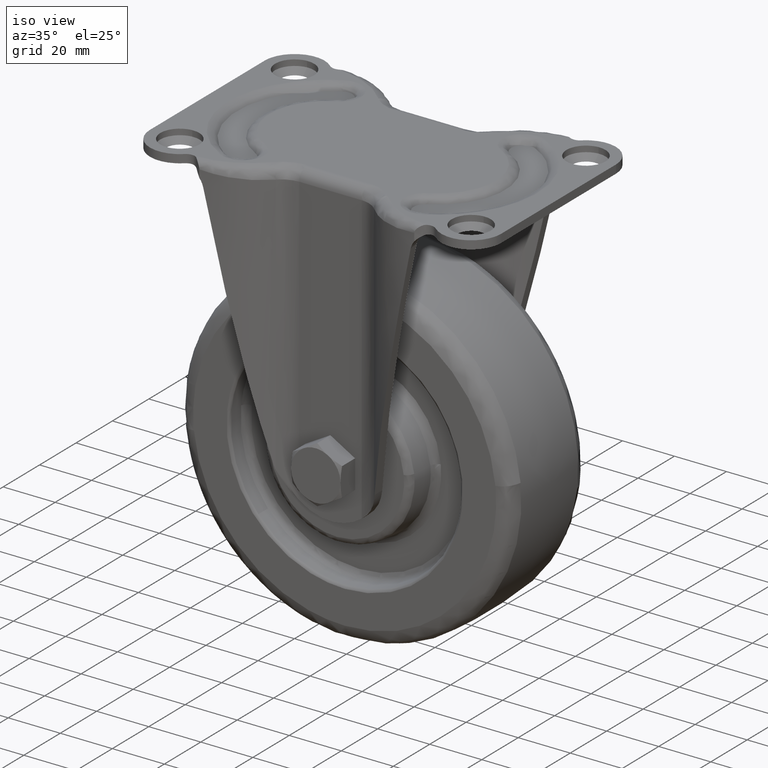
[diagram: clean part render]
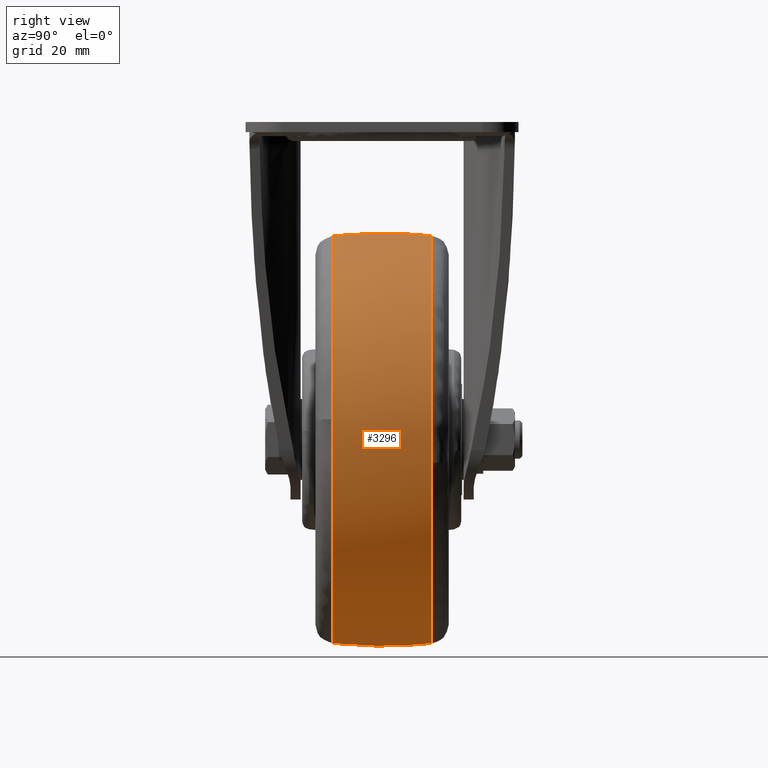
[diagram: tour spotlight — one face highlighted and labeled with its STEP entity id]
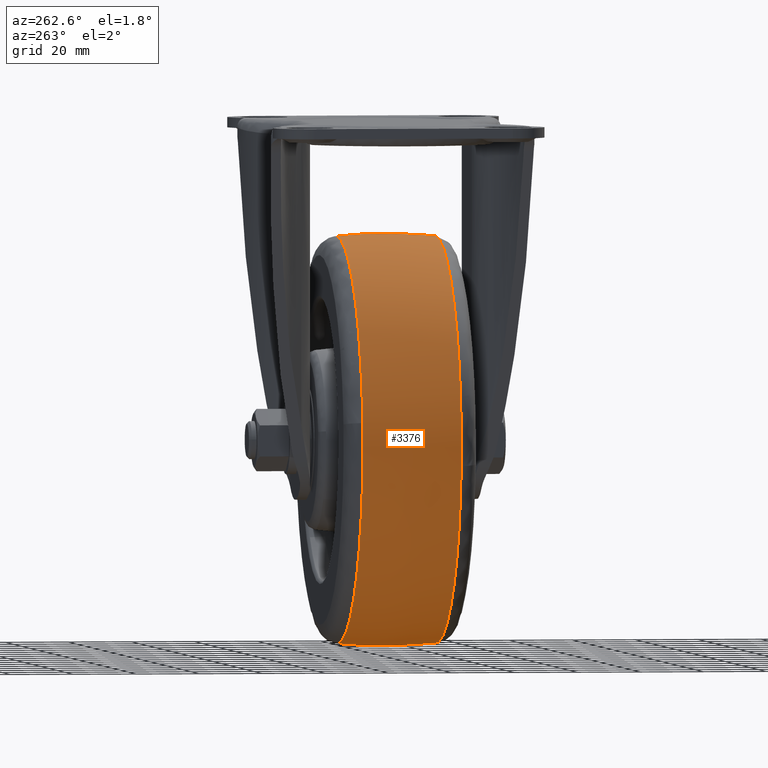
[diagram: tour spotlight — one face highlighted and labeled with its STEP entity id]
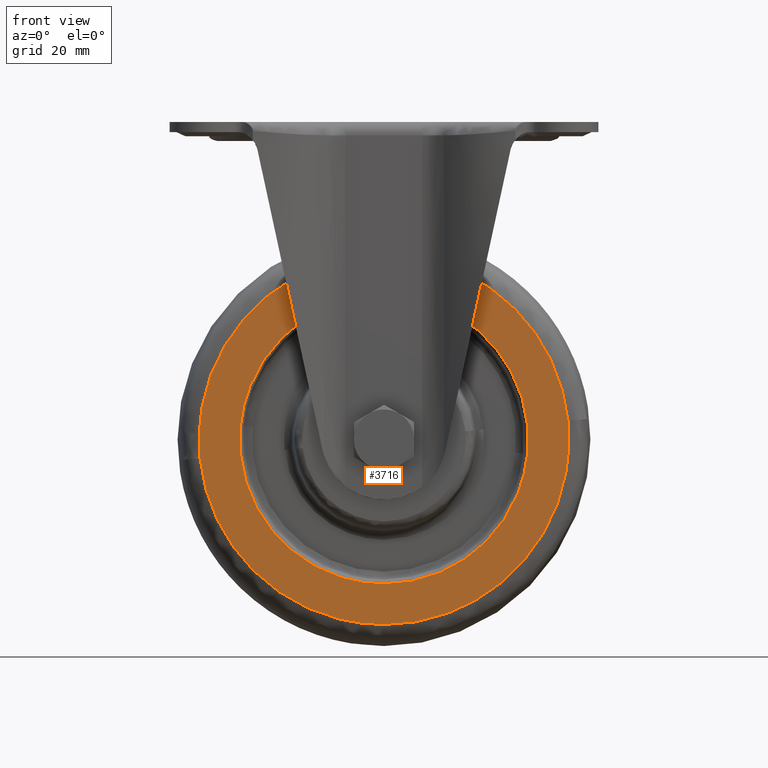
[diagram: tour spotlight — one face highlighted and labeled with its STEP entity id]
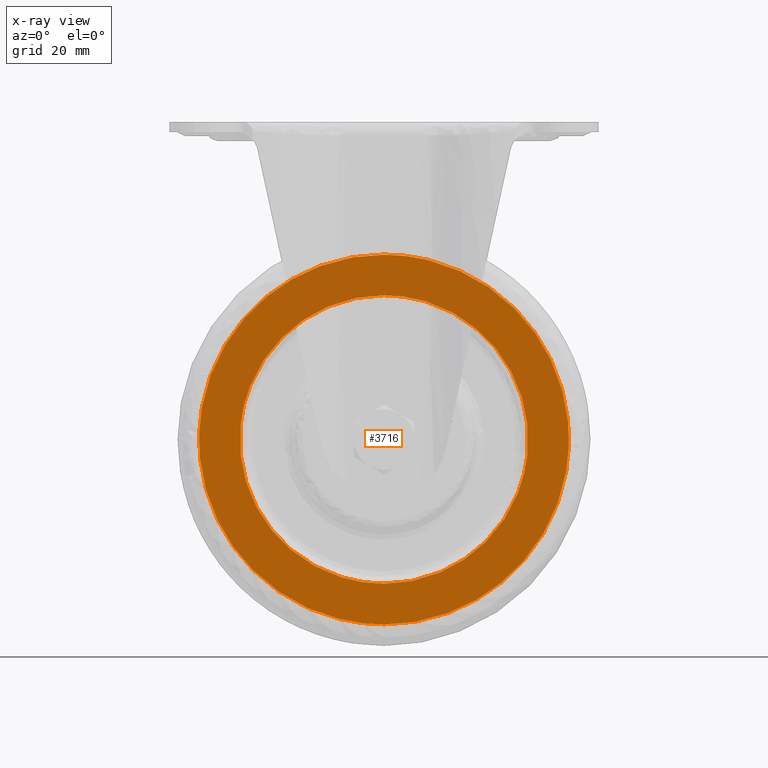
[diagram: x-ray of the same camera — body ghosted, this tour face saturated]
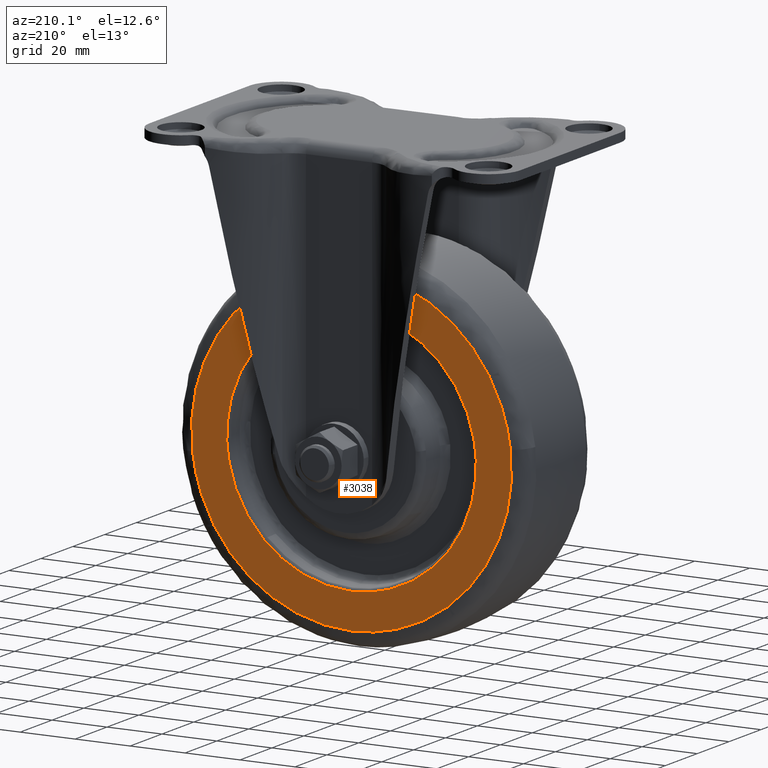
[diagram: tour spotlight — one face highlighted and labeled with its STEP entity id]
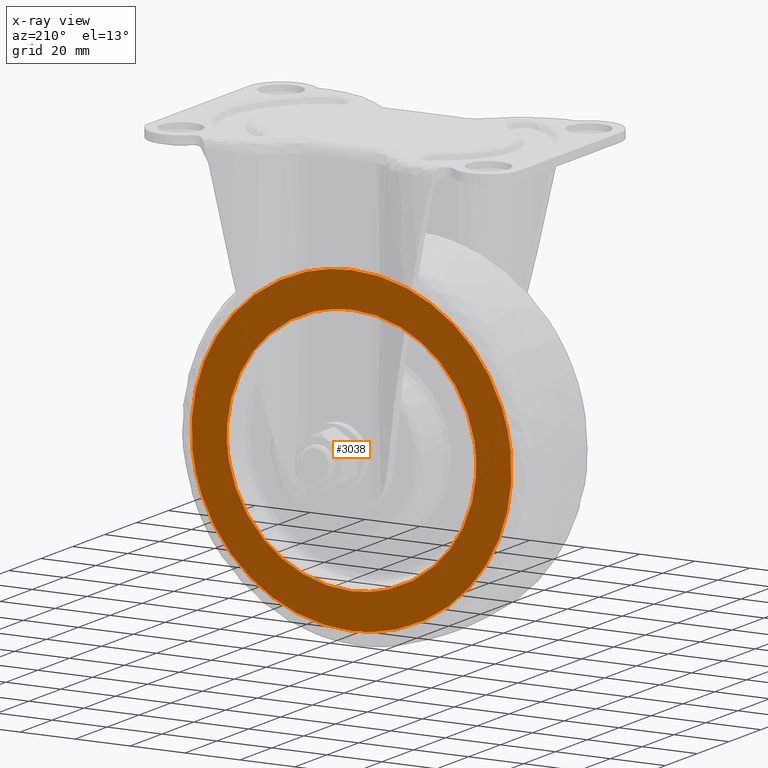
[diagram: x-ray of the same camera — body ghosted, this tour face saturated]
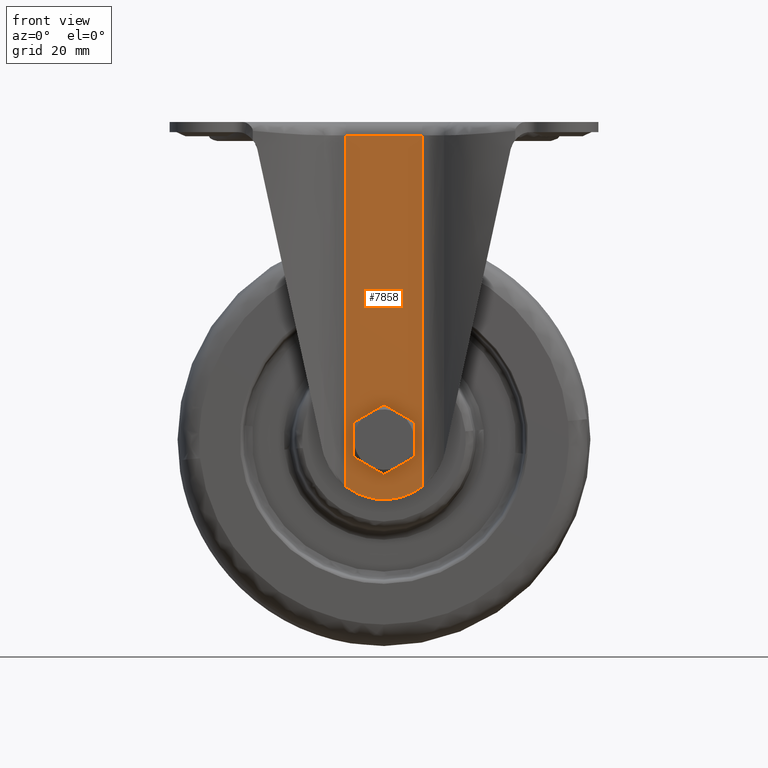
[diagram: tour spotlight — one face highlighted and labeled with its STEP entity id]
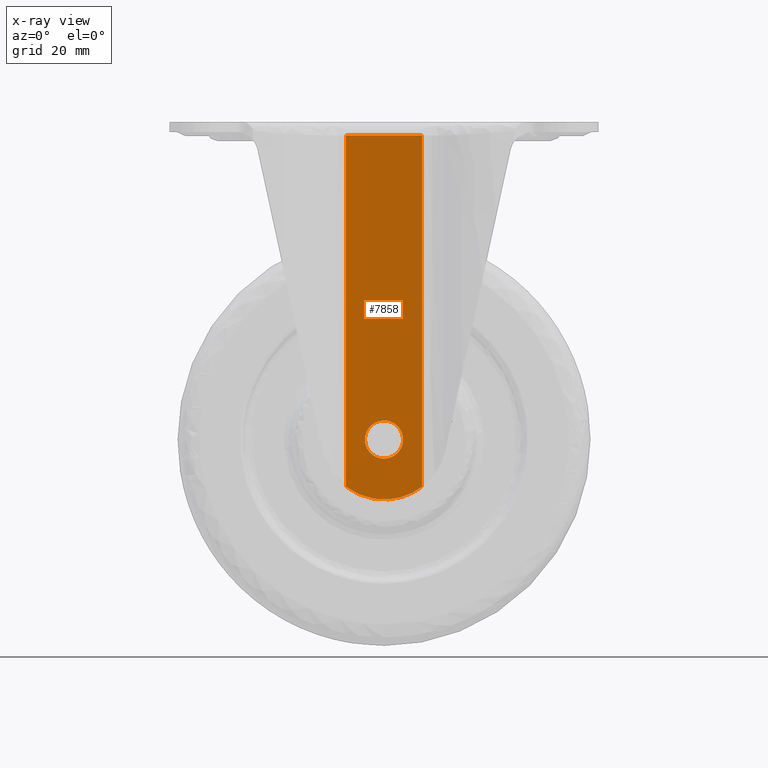
[diagram: x-ray of the same camera — body ghosted, this tour face saturated]
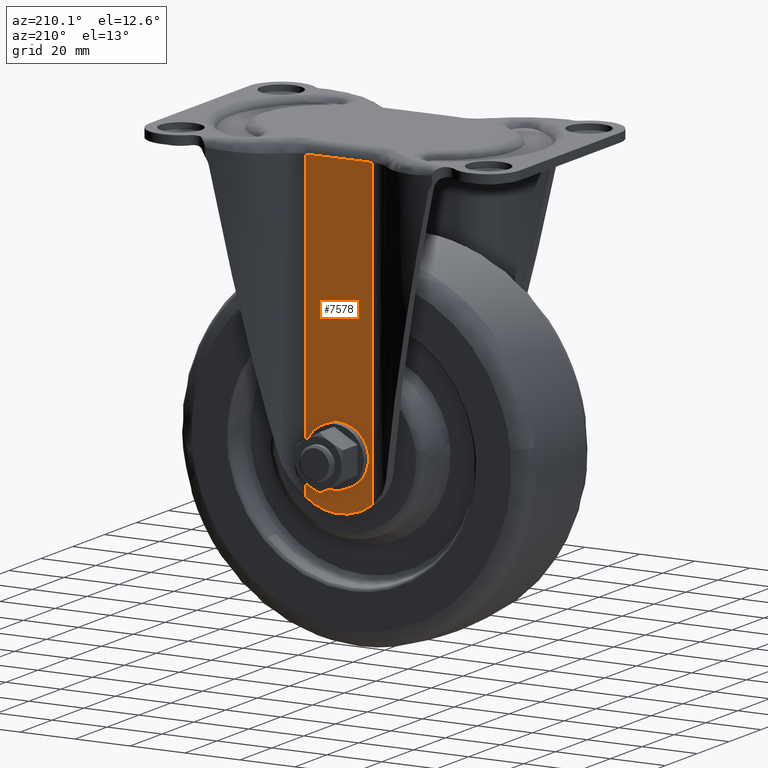
[diagram: tour spotlight — one face highlighted and labeled with its STEP entity id]
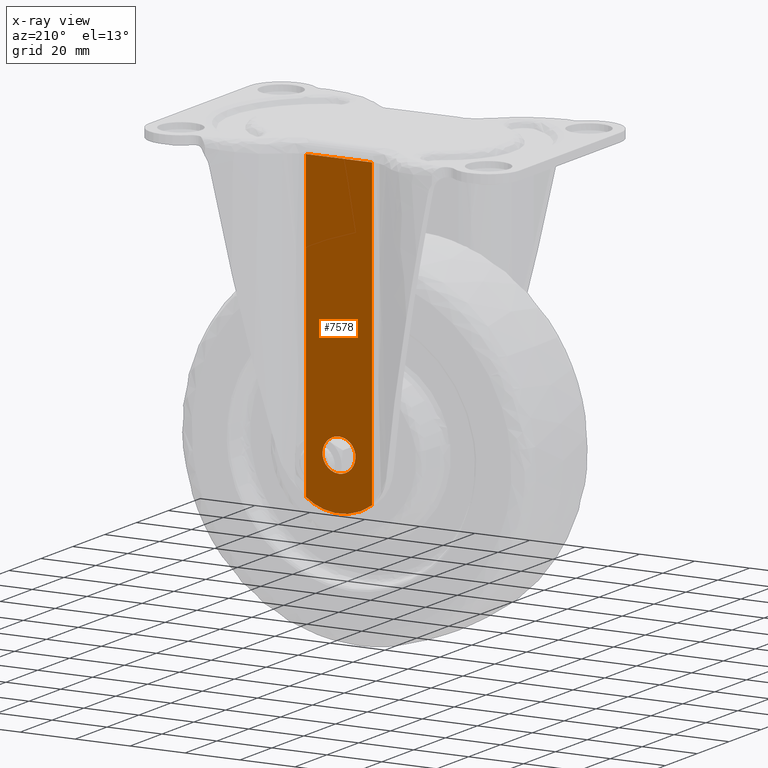
[diagram: x-ray of the same camera — body ghosted, this tour face saturated]
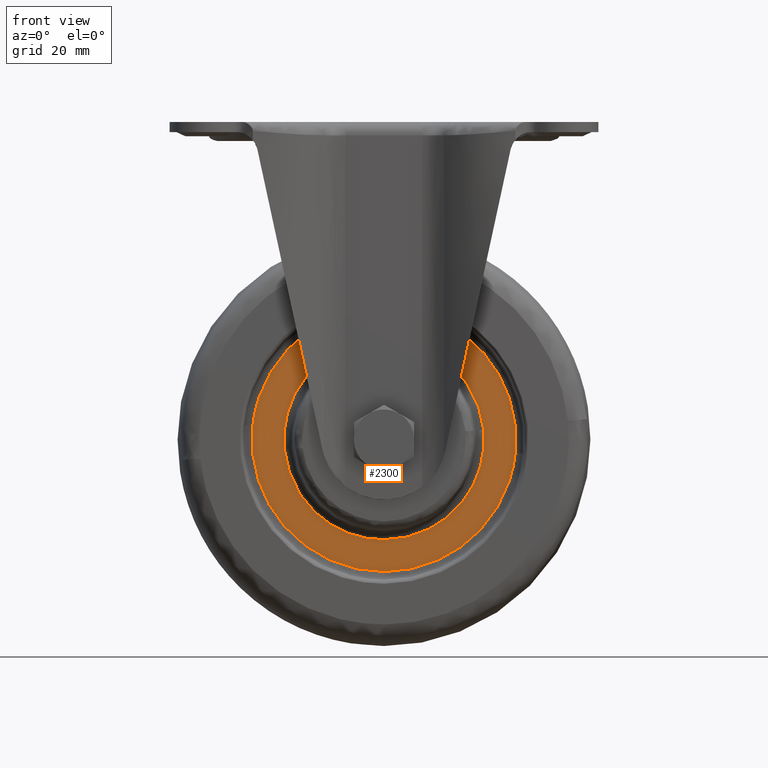
[diagram: tour spotlight — one face highlighted and labeled with its STEP entity id]
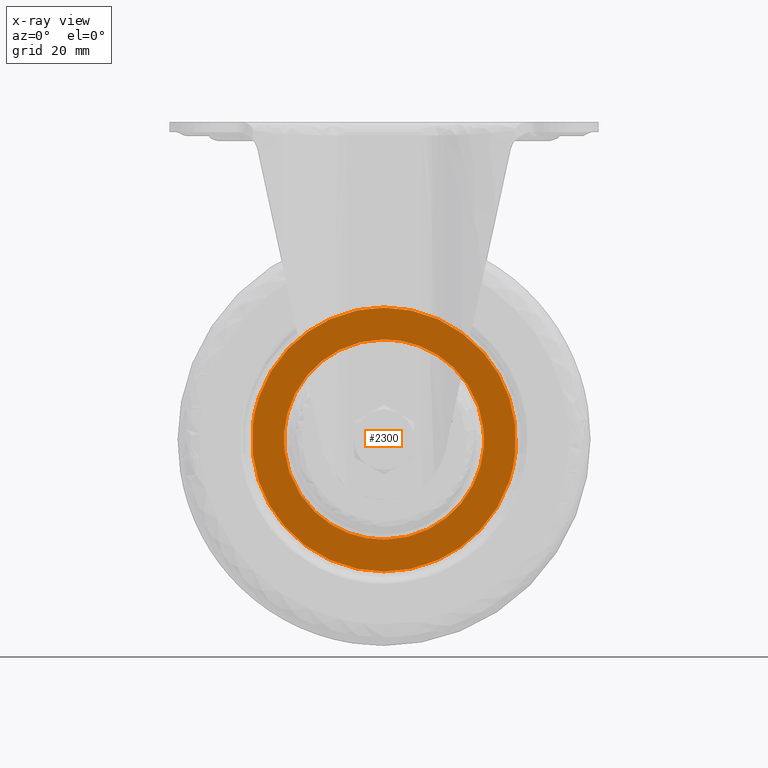
[diagram: x-ray of the same camera — body ghosted, this tour face saturated]
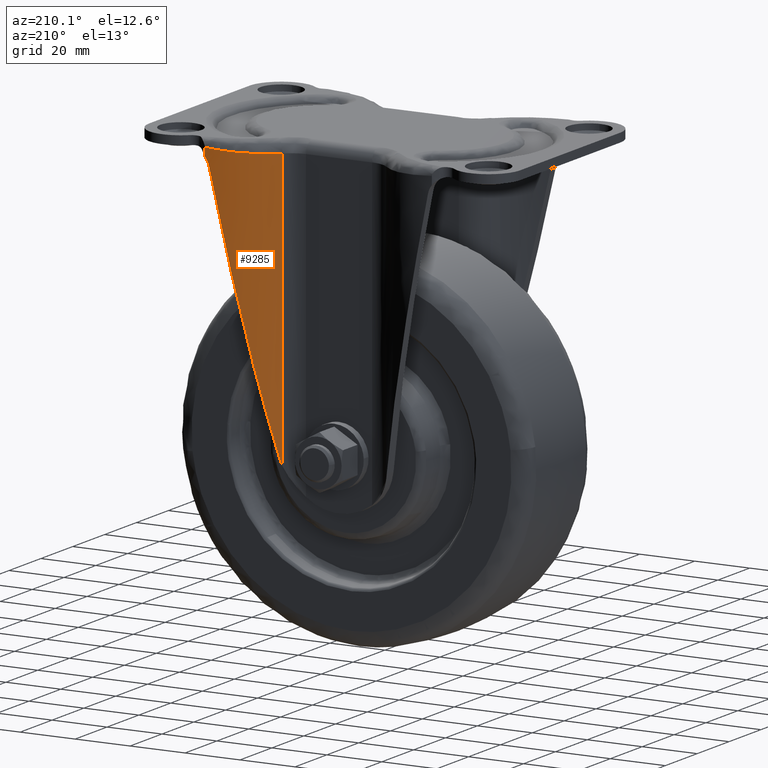
[diagram: tour spotlight — one face highlighted and labeled with its STEP entity id]
A machine part: a face-by-face anatomy tour. The part has 209 B-rep faces; the first image is the clean iso view, then the 8 largest visible faces are spotlighted one at a time (largest first), each with its STEP entity span.

Face 1 — right view, entity #3296. In plain terms, the highlighted face is a freeform B-spline surface patch.
Definition (entity closure, byte-faithful):
#3085=CARTESIAN_POINT('',(0.0,15.624983328062680,-35.816020549022269));
#3086=VERTEX_POINT('',#3085);
#3100=CARTESIAN_POINT('',(63.773927490684322,15.624983417787440,-107.243571836980190));
#3101=VERTEX_POINT('',#3100);
#3102=CARTESIAN_POINT('',(63.773927490684315,15.624983417787437,-107.243571836980220));
#3103=CARTESIAN_POINT('',(64.183978958307009,15.624983415519528,-103.633392271084970));
#3104=CARTESIAN_POINT('',(64.183978934222921,15.624983412979541,-100.000000091466600));
#3105=CARTESIAN_POINT('',(64.183978508776704,15.624983368110533,-35.816020592167391));
#3106=CARTESIAN_POINT('',(0.0,15.624983328062680,-35.816020549022269));
#3114=(BOUNDED_CURVE()B_SPLINE_CURVE(2,(#3102,#3103,#3104,#3105,#3106),.UNSPECIFIED.,.F.,.U.)B_SPLINE_CURVE_WITH_KNOTS((3,2,3),(0.230444236947693,0.250000000000000,0.500000000000000),.UNSPECIFIED.)CURVE()GEOMETRIC_REPRESENTATION_ITEM()RATIONAL_B_SPLINE_CURVE((0.957762333846402,0.977088998453026,1.0,0.707106781186548,1.0))REPRESENTATION_ITEM(''));
#3115=EDGE_CURVE('',#3101,#3086,#3114,.T.);
#3164=CARTESIAN_POINT('',(0.0,15.624983328092540,-164.183979450974590));
#3165=VERTEX_POINT('',#3164);
#3166=CARTESIAN_POINT('',(0.0,15.624983328092540,-164.183979450974590));
#3167=CARTESIAN_POINT('',(57.306520510294796,15.624983372946620,-164.183979499297640));
#3168=CARTESIAN_POINT('',(63.773927490684315,15.624983417787437,-107.243571836980220));
#3176=(BOUNDED_CURVE()B_SPLINE_CURVE(2,(#3166,#3167,#3168),.UNSPECIFIED.,.F.,.U.)B_SPLINE_CURVE_WITH_KNOTS((3,3),(0.0,0.230444236947693),.UNSPECIFIED.)CURVE()GEOMETRIC_REPRESENTATION_ITEM()RATIONAL_B_SPLINE_CURVE((1.0,0.730017782733521,0.957762333846402))REPRESENTATION_ITEM(''));
#3177=EDGE_CURVE('',#3165,#3101,#3176,.T.);
#3199=CARTESIAN_POINT('',(-1.789533625138485,-17.198141396806342,-164.010817172693440));
#3200=CARTESIAN_POINT('',(-1.817187922014051,-8.627517978399817,-164.999999000000140));
#3201=CARTESIAN_POINT('',(-1.817187922014052,0.0,-164.999999000000140));
#3202=CARTESIAN_POINT('',(-1.817187922014052,8.627509416960843,-164.999999000000140));
#3203=CARTESIAN_POINT('',(-1.789533679842467,17.198124442932297,-164.010819129430390));
#3204=CARTESIAN_POINT('',(-0.899977710472464,-17.198141396806335,-164.010817172693440));
#3205=CARTESIAN_POINT('',(-0.913885384760994,-8.627517978399819,-164.999999000000060));
#3206=CARTESIAN_POINT('',(-0.913885384760994,0.0,-164.999999000000170));
#3207=CARTESIAN_POINT('',(-0.913885384760994,8.627509416960843,-164.999999000000170));
#3208=CARTESIAN_POINT('',(-0.899977737983746,17.198124442932297,-164.010819129430360));
#3209=CARTESIAN_POINT('',(64.010817172693379,-17.198141396806339,-164.010817172693320));
#3210=CARTESIAN_POINT('',(64.999999000000088,-8.627517978399817,-164.999999000000090));
#3211=CARTESIAN_POINT('',(64.999999000000102,0.0,-164.999999000000030));
#3212=CARTESIAN_POINT('',(64.999999000000116,8.627509416960843,-164.999999000000060));
#3213=CARTESIAN_POINT('',(64.010819129430359,17.198124442932293,-164.010819129430390));
#3214=CARTESIAN_POINT('',(64.010817172693379,-17.198141396806335,-100.000000000000010));
#3215=CARTESIAN_POINT('',(64.999999000000102,-8.627517978399819,-100.0));
#3216=CARTESIAN_POINT('',(64.999999000000102,0.0,-100.0));
#3217=CARTESIAN_POINT('',(64.999999000000102,8.627509416960843,-100.0));
#3218=CARTESIAN_POINT('',(64.010819129430345,17.198124442932297,-100.0));
#3219=CARTESIAN_POINT('',(64.010817172693379,-17.198141396806339,-35.989182827306642));
#3220=CARTESIAN_POINT('',(64.999999000000088,-8.627517978399817,-35.000000999999905));
#3221=CARTESIAN_POINT('',(64.999999000000102,0.0,-35.000000999999919));
#3222=CARTESIAN_POINT('',(64.999999000000116,8.627509416960843,-35.000000999999912));
#3223=CARTESIAN_POINT('',(64.010819129430359,17.198124442932293,-35.989180870569669));
#3224=CARTESIAN_POINT('',(-0.899977710472467,-17.198141396806335,-35.989182827306642));
#3225=CARTESIAN_POINT('',(-0.913885384760997,-8.627517978399819,-35.000000999999905));
#3226=CARTESIAN_POINT('',(-0.913885384760997,0.0,-35.000000999999912));
#3227=CARTESIAN_POINT('',(-0.913885384760997,8.627509416960843,-35.000000999999905));
#3228=CARTESIAN_POINT('',(-0.899977737983749,17.198124442932297,-35.989180870569662));
#3229=CARTESIAN_POINT('',(-1.789533625138490,-17.198141396806339,-35.989182827306642));
#3230=CARTESIAN_POINT('',(-1.817187922014057,-8.627517978399819,-35.000000999999912));
#3231=CARTESIAN_POINT('',(-1.817187922014058,0.0,-35.000000999999912));
#3232=CARTESIAN_POINT('',(-1.817187922014058,8.627509416960843,-35.000000999999912));
#3233=CARTESIAN_POINT('',(-1.789533679842473,17.198124442932297,-35.989180870569655));
#3241=(BOUNDED_SURFACE()B_SPLINE_SURFACE(2,2,((#3199,#3204,#3209,#3214,#3219,#3224,#3229),(#3200,#3205,#3210,#3215,#3220,#3225,#3230),(#3201,#3206,#3211,#3216,#3221,#3226,#3231),(#3202,#3207,#3212,#3217,#3222,#3227,#3232),(#3203,#3208,#3213,#3218,#3223,#3228,#3233)),.UNSPECIFIED.,.F.,.F.,.U.)B_SPLINE_SURFACE_WITH_KNOTS((3,2,3),(3,1,2,1,3),(0.0,17.442398229427290,34.884779392435192),(0.0,2.153910491203015,109.849435051353690,217.544959611504310,219.698870102707300),.UNSPECIFIED.)GEOMETRIC_REPRESENTATION_ITEM()RATIONAL_B_SPLINE_SURFACE(((0.986832605375291,0.981118815028771,0.689715507356252,0.975405024682251,0.689715507356252,0.981118815028771,0.986832605375291),(0.997548039414901,0.991772206384301,0.697204721823746,0.985996373353702,0.697204721823746,0.991772206384301,0.997548039414901),(1.011715728752538,1.005857864376269,0.707106781186548,1.0,0.707106781186548,1.005857864376269,1.011715728752538),(0.997548053277199,0.991772220166337,0.697204731512362,0.985996387055474,0.697204731512362,0.991772220166337,0.997548053277199),(0.986832626344211,0.981118835876280,0.689715522011816,0.975405045408349,0.689715522011816,0.981118835876280,0.986832626344211)))REPRESENTATION_ITEM('')SURFACE());
#3242=CARTESIAN_POINT('',(0.0,-15.624983249453040,-164.183979459211000));
#3243=VERTEX_POINT('',#3242);
#3244=CARTESIAN_POINT('',(0.0,-15.624983249453040,-164.183979459211000));
#3245=CARTESIAN_POINT('',(0.0,-11.895091171353000,-164.574636888703400));
#3246=CARTESIAN_POINT('',(0.0,-1.475484581530805,-165.272330864823690));
#3247=CARTESIAN_POINT('',(0.0,8.976074389182042,-164.880650564697310));
#3248=CARTESIAN_POINT('',(0.0,15.624983328092540,-164.183979450974590));
#3249=B_SPLINE_CURVE_WITH_KNOTS('',3,(#3244,#3245,#3246,#3247,#3248),.UNSPECIFIED.,.F.,.U.,(4,1,4),(-5.067534E-009,11.250895787474681,31.306772043252369),.UNSPECIFIED.);
#3250=EDGE_CURVE('',#3243,#3165,#3249,.T.);
#3251=ORIENTED_EDGE('',*,*,#3250,.T.);
#3252=ORIENTED_EDGE('',*,*,#3177,.T.);
#3253=ORIENTED_EDGE('',*,*,#3115,.T.);
#3254=CARTESIAN_POINT('',(0.0,-15.624991867398739,-35.816021869721020));
#3255=VERTEX_POINT('',#3254);
#3256=CARTESIAN_POINT('',(0.0,-15.624991867398739,-35.816021869721020));
#3257=CARTESIAN_POINT('',(0.0,-11.895098938043139,-35.425363726591939));
#3258=CARTESIAN_POINT('',(0.0,-1.475489095710269,-34.727670766765812));
#3259=CARTESIAN_POINT('',(0.0,8.976072468146016,-35.119347881441733));
#3260=CARTESIAN_POINT('',(0.0,15.624983328062680,-35.816020549022269));
#3261=B_SPLINE_CURVE_WITH_KNOTS('',3,(#3256,#3257,#3258,#3259,#3260),.UNSPECIFIED.,.F.,.U.,(4,1,4),(-5.071374E-009,11.250898902869480,31.306780708640520),.UNSPECIFIED.);
#3262=EDGE_CURVE('',#3255,#3086,#3261,.T.);
#3263=ORIENTED_EDGE('',*,*,#3262,.F.);
#3264=CARTESIAN_POINT('',(63.859920255063081,-15.624988823688581,-93.558444153041563));
#3265=VERTEX_POINT('',#3264);
#3266=CARTESIAN_POINT('',(63.859920255063081,-15.624988823688577,-93.558444153041563));
#3267=CARTESIAN_POINT('',(58.035436139787237,-15.624992283804071,-35.816021818478738));
#3268=CARTESIAN_POINT('',(0.0,-15.624991867398739,-35.816021869721020));
#3276=(BOUNDED_CURVE()B_SPLINE_CURVE(2,(#3266,#3267,#3268),.UNSPECIFIED.,.F.,.U.)B_SPLINE_CURVE_WITH_KNOTS((3,3),(0.267423287240258,0.500000000000000),.UNSPECIFIED.)CURVE()GEOMETRIC_REPRESENTATION_ITEM()RATIONAL_B_SPLINE_CURVE((0.962019942358929,0.727519431914990,1.0))REPRESENTATION_ITEM(''));
#3277=EDGE_CURVE('',#3265,#3255,#3276,.T.);
#3278=ORIENTED_EDGE('',*,*,#3277,.F.);
#3279=CARTESIAN_POINT('',(0.0,-15.624983249453040,-164.183979459211000));
#3280=CARTESIAN_POINT('',(64.183977682288599,-15.624983625968563,-164.183979412877390));
#3281=CARTESIAN_POINT('',(64.183978190291654,-15.624988351346760,-100.000000566890190));
#3282=CARTESIAN_POINT('',(64.183978215847972,-15.624988589068280,-96.771071101404118));
#3283=CARTESIAN_POINT('',(63.859920255063081,-15.624988823688577,-93.558444153041563));
#3291=(BOUNDED_CURVE()B_SPLINE_CURVE(2,(#3279,#3280,#3281,#3282,#3283),.UNSPECIFIED.,.F.,.U.)B_SPLINE_CURVE_WITH_KNOTS((3,2,3),(0.0,0.250000000000000,0.267423287240258),.UNSPECIFIED.)CURVE()GEOMETRIC_REPRESENTATION_ITEM()RATIONAL_B_SPLINE_CURVE((1.0,0.707106781186547,1.0,0.979587349271557,0.962019942358929))REPRESENTATION_ITEM(''));
#3292=EDGE_CURVE('',#3243,#3265,#3291,.T.);
#3293=ORIENTED_EDGE('',*,*,#3292,.F.);
#3294=EDGE_LOOP('',(#3251,#3252,#3253,#3263,#3278,#3293));
#3295=FACE_OUTER_BOUND('',#3294,.T.);
#3296=ADVANCED_FACE('',(#3295),#3241,.T.);

Face 2 — auxiliary view, entity #3376. In plain terms, the highlighted face is a freeform B-spline surface patch.
Definition (entity closure, byte-faithful):
#3070=CARTESIAN_POINT('',(-63.773927490684670,15.624983417784071,-92.756428163019791));
#3071=VERTEX_POINT('',#3070);
#3085=CARTESIAN_POINT('',(0.0,15.624983328062680,-35.816020549022269));
#3086=VERTEX_POINT('',#3085);
#3087=CARTESIAN_POINT('',(0.0,15.624983328062680,-35.816020549022269));
#3088=CARTESIAN_POINT('',(-57.306520510297638,15.624983372916761,-35.816020500699260));
#3089=CARTESIAN_POINT('',(-63.773927490684670,15.624983417784067,-92.756428163019791));
#3097=(BOUNDED_CURVE()B_SPLINE_CURVE(2,(#3087,#3088,#3089),.UNSPECIFIED.,.F.,.U.)B_SPLINE_CURVE_WITH_KNOTS((3,3),(0.500000000000000,0.730444236947701),.UNSPECIFIED.)CURVE()GEOMETRIC_REPRESENTATION_ITEM()RATIONAL_B_SPLINE_CURVE((1.0,0.730017782733512,0.957762333846418))REPRESENTATION_ITEM(''));
#3098=EDGE_CURVE('',#3086,#3071,#3097,.T.);
#3164=CARTESIAN_POINT('',(0.0,15.624983328092540,-164.183979450974590));
#3165=VERTEX_POINT('',#3164);
#3179=CARTESIAN_POINT('',(-63.773927490684670,15.624983417784067,-92.756428163019791));
#3180=CARTESIAN_POINT('',(-64.183978958307023,15.624983415517839,-96.366607728913479));
#3181=CARTESIAN_POINT('',(-64.183978934222921,15.624983412979541,-99.999999908530299));
#3182=CARTESIAN_POINT('',(-64.183978508776704,15.624983368140402,-164.183979407829470));
#3183=CARTESIAN_POINT('',(0.0,15.624983328092540,-164.183979450974590));
#3191=(BOUNDED_CURVE()B_SPLINE_CURVE(2,(#3179,#3180,#3181,#3182,#3183),.UNSPECIFIED.,.F.,.U.)B_SPLINE_CURVE_WITH_KNOTS((3,2,3),(0.730444236947701,0.750000000000000,1.0),.UNSPECIFIED.)CURVE()GEOMETRIC_REPRESENTATION_ITEM()RATIONAL_B_SPLINE_CURVE((0.957762333846418,0.977088998453036,1.0,0.707106781186548,1.0))REPRESENTATION_ITEM(''));
#3192=EDGE_CURVE('',#3071,#3165,#3191,.T.);
#3242=CARTESIAN_POINT('',(0.0,-15.624983249453040,-164.183979459211000));
#3243=VERTEX_POINT('',#3242);
#3244=CARTESIAN_POINT('',(0.0,-15.624983249453040,-164.183979459211000));
#3245=CARTESIAN_POINT('',(0.0,-11.895091171353000,-164.574636888703400));
#3246=CARTESIAN_POINT('',(0.0,-1.475484581530805,-165.272330864823690));
#3247=CARTESIAN_POINT('',(0.0,8.976074389182042,-164.880650564697310));
#3248=CARTESIAN_POINT('',(0.0,15.624983328092540,-164.183979450974590));
#3249=B_SPLINE_CURVE_WITH_KNOTS('',3,(#3244,#3245,#3246,#3247,#3248),.UNSPECIFIED.,.F.,.U.,(4,1,4),(-5.067534E-009,11.250895787474681,31.306772043252369),.UNSPECIFIED.);
#3250=EDGE_CURVE('',#3243,#3165,#3249,.T.);
#3254=CARTESIAN_POINT('',(0.0,-15.624991867398739,-35.816021869721020));
#3255=VERTEX_POINT('',#3254);
#3256=CARTESIAN_POINT('',(0.0,-15.624991867398739,-35.816021869721020));
#3257=CARTESIAN_POINT('',(0.0,-11.895098938043139,-35.425363726591939));
#3258=CARTESIAN_POINT('',(0.0,-1.475489095710269,-34.727670766765812));
#3259=CARTESIAN_POINT('',(0.0,8.976072468146016,-35.119347881441733));
#3260=CARTESIAN_POINT('',(0.0,15.624983328062680,-35.816020549022269));
#3261=B_SPLINE_CURVE_WITH_KNOTS('',3,(#3256,#3257,#3258,#3259,#3260),.UNSPECIFIED.,.F.,.U.,(4,1,4),(-5.071374E-009,11.250898902869480,31.306780708640520),.UNSPECIFIED.);
#3262=EDGE_CURVE('',#3255,#3086,#3261,.T.);
#3297=CARTESIAN_POINT('',(1.789533625138485,-17.198141396806342,-35.989182827306628));
#3298=CARTESIAN_POINT('',(1.817187922014051,-8.627517978399817,-35.000000999999912));
#3299=CARTESIAN_POINT('',(1.817187922014052,0.0,-35.000000999999912));
#3300=CARTESIAN_POINT('',(1.817187922014052,8.627509416960843,-35.000000999999912));
#3301=CARTESIAN_POINT('',(1.789533679842467,17.198124442932297,-35.989180870569641));
#3302=CARTESIAN_POINT('',(0.899977710472464,-17.198141396806335,-35.989182827306642));
#3303=CARTESIAN_POINT('',(0.913885384760994,-8.627517978399819,-35.000000999999905));
#3304=CARTESIAN_POINT('',(0.913885384760994,0.0,-35.000000999999912));
#3305=CARTESIAN_POINT('',(0.913885384760994,8.627509416960843,-35.000000999999898));
#3306=CARTESIAN_POINT('',(0.899977737983746,17.198124442932297,-35.989180870569662));
#3307=CARTESIAN_POINT('',(-64.010817172693379,-17.198141396806339,-35.989182827306642));
#3308=CARTESIAN_POINT('',(-64.999999000000088,-8.627517978399817,-35.000000999999905));
#3309=CARTESIAN_POINT('',(-64.999999000000102,0.0,-35.000000999999919));
#3310=CARTESIAN_POINT('',(-64.999999000000116,8.627509416960843,-35.000000999999912));
#3311=CARTESIAN_POINT('',(-64.010819129430359,17.198124442932293,-35.989180870569669));
#3312=CARTESIAN_POINT('',(-64.010817172693379,-17.198141396806335,-100.000000000000010));
#3313=CARTESIAN_POINT('',(-64.999999000000102,-8.627517978399819,-100.0));
#3314=CARTESIAN_POINT('',(-64.999999000000102,0.0,-100.0));
#3315=CARTESIAN_POINT('',(-64.999999000000102,8.627509416960843,-100.0));
#3316=CARTESIAN_POINT('',(-64.010819129430345,17.198124442932297,-100.0));
#3317=CARTESIAN_POINT('',(-64.010817172693379,-17.198141396806339,-164.010817172693320));
#3318=CARTESIAN_POINT('',(-64.999999000000088,-8.627517978399817,-164.999999000000090));
#3319=CARTESIAN_POINT('',(-64.999999000000102,0.0,-164.999999000000030));
#3320=CARTESIAN_POINT('',(-64.999999000000116,8.627509416960843,-164.999999000000060));
#3321=CARTESIAN_POINT('',(-64.010819129430359,17.198124442932293,-164.010819129430390));
#3322=CARTESIAN_POINT('',(0.899977710472467,-17.198141396806335,-164.010817172693440));
#3323=CARTESIAN_POINT('',(0.913885384760997,-8.627517978399819,-164.999999000000060));
#3324=CARTESIAN_POINT('',(0.913885384760997,0.0,-164.999999000000170));
#3325=CARTESIAN_POINT('',(0.913885384760997,8.627509416960843,-164.999999000000170));
#3326=CARTESIAN_POINT('',(0.899977737983749,17.198124442932297,-164.010819129430360));
#3327=CARTESIAN_POINT('',(1.789533625138490,-17.198141396806339,-164.010817172693410));
#3328=CARTESIAN_POINT('',(1.817187922014057,-8.627517978399819,-164.999999000000140));
#3329=CARTESIAN_POINT('',(1.817187922014058,0.0,-164.999999000000140));
#3330=CARTESIAN_POINT('',(1.817187922014058,8.627509416960843,-164.999999000000140));
#3331=CARTESIAN_POINT('',(1.789533679842473,17.198124442932297,-164.010819129430390));
#3339=(BOUNDED_SURFACE()B_SPLINE_SURFACE(2,2,((#3297,#3302,#3307,#3312,#3317,#3322,#3327),(#3298,#3303,#3308,#3313,#3318,#3323,#3328),(#3299,#3304,#3309,#3314,#3319,#3324,#3329),(#3300,#3305,#3310,#3315,#3320,#3325,#3330),(#3301,#3306,#3311,#3316,#3321,#3326,#3331)),.UNSPECIFIED.,.F.,.F.,.U.)B_SPLINE_SURFACE_WITH_KNOTS((3,2,3),(3,1,2,1,3),(0.0,17.442398229427290,34.884779392435192),(0.0,2.153910491203015,109.849435051353690,217.544959611504310,219.698870102707300),.UNSPECIFIED.)GEOMETRIC_REPRESENTATION_ITEM()RATIONAL_B_SPLINE_SURFACE(((0.986832605375291,0.981118815028771,0.689715507356252,0.975405024682251,0.689715507356252,0.981118815028771,0.986832605375291),(0.997548039414901,0.991772206384301,0.697204721823746,0.985996373353702,0.697204721823746,0.991772206384301,0.997548039414901),(1.011715728752538,1.005857864376269,0.707106781186548,1.0,0.707106781186548,1.005857864376269,1.011715728752538),(0.997548053277199,0.991772220166337,0.697204731512362,0.985996387055474,0.697204731512362,0.991772220166337,0.997548053277199),(0.986832626344211,0.981118835876280,0.689715522011816,0.975405045408349,0.689715522011816,0.981118835876280,0.986832626344211)))REPRESENTATION_ITEM('')SURFACE());
#3340=ORIENTED_EDGE('',*,*,#3250,.F.);
#3341=CARTESIAN_POINT('',(-63.859920366569547,-15.624987958072580,-106.441555858017790));
#3342=VERTEX_POINT('',#3341);
#3343=CARTESIAN_POINT('',(-63.859920366569554,-15.624987958072582,-106.441555858017810));
#3344=CARTESIAN_POINT('',(-58.035437330977913,-15.624983665502345,-164.183979509383530));
#3345=CARTESIAN_POINT('',(0.0,-15.624983249453040,-164.183979459211000));
#3353=(BOUNDED_CURVE()B_SPLINE_CURVE(2,(#3343,#3344,#3345),.UNSPECIFIED.,.F.,.U.)B_SPLINE_CURVE_WITH_KNOTS((3,3),(0.767423283736384,1.0),.UNSPECIFIED.)CURVE()GEOMETRIC_REPRESENTATION_ITEM()RATIONAL_B_SPLINE_CURVE((0.962019949424643,0.727519427809946,1.0))REPRESENTATION_ITEM(''));
#3354=EDGE_CURVE('',#3342,#3243,#3353,.T.);
#3355=ORIENTED_EDGE('',*,*,#3354,.F.);
#3356=CARTESIAN_POINT('',(0.0,-15.624991867398739,-35.816021869721020));
#3357=CARTESIAN_POINT('',(-64.183977672698788,-15.624992243592368,-35.816021915087241));
#3358=CARTESIAN_POINT('',(-64.183978170096040,-15.624988350668840,-100.000000760004700));
#3359=CARTESIAN_POINT('',(-64.183978195118783,-15.624988154825992,-103.228929562558700));
#3360=CARTESIAN_POINT('',(-63.859920366569554,-15.624987958072582,-106.441555858017810));
#3368=(BOUNDED_CURVE()B_SPLINE_CURVE(2,(#3356,#3357,#3358,#3359,#3360),.UNSPECIFIED.,.F.,.U.)B_SPLINE_CURVE_WITH_KNOTS((3,2,3),(0.500000000000000,0.750000000000000,0.767423283736384),.UNSPECIFIED.)CURVE()GEOMETRIC_REPRESENTATION_ITEM()RATIONAL_B_SPLINE_CURVE((1.0,0.707106781186547,1.0,0.979587353376601,0.962019949424643))REPRESENTATION_ITEM(''));
#3369=EDGE_CURVE('',#3255,#3342,#3368,.T.);
#3370=ORIENTED_EDGE('',*,*,#3369,.F.);
#3371=ORIENTED_EDGE('',*,*,#3262,.T.);
#3372=ORIENTED_EDGE('',*,*,#3098,.T.);
#3373=ORIENTED_EDGE('',*,*,#3192,.T.);
#3374=EDGE_LOOP('',(#3340,#3355,#3370,#3371,#3372,#3373));
#3375=FACE_OUTER_BOUND('',#3374,.T.);
#3376=ADVANCED_FACE('',(#3375),#3339,.T.);

Face 3 — front view, entity #3716. An x-ray twin of the same camera follows (body ghosted, this face saturated) — the face is partly hidden behind the body. In plain terms, the highlighted face is a freeform B-spline surface patch.
Definition (entity closure, byte-faithful):
#3406=CARTESIAN_POINT('',(45.192628268983242,-21.0,-104.558626097755290));
#3407=VERTEX_POINT('',#3406);
#3408=CARTESIAN_POINT('',(0.0,-21.0,-54.578037001448713));
#3409=VERTEX_POINT('',#3408);
#3410=CARTESIAN_POINT('',(45.192628268983242,-21.0,-104.558626097755310));
#3411=CARTESIAN_POINT('',(45.421962989088328,-21.000000000000007,-102.285081717809400));
#3412=CARTESIAN_POINT('',(45.421962989331902,-21.0,-99.999999999070056));
#3413=CARTESIAN_POINT('',(45.421962994173505,-21.000000000000007,-54.578037001007132));
#3414=CARTESIAN_POINT('',(0.0,-21.0,-54.578037001448713));
#3422=(BOUNDED_CURVE()B_SPLINE_CURVE(2,(#3410,#3411,#3412,#3413,#3414),.UNSPECIFIED.,.F.,.U.)B_SPLINE_CURVE_WITH_KNOTS((3,2,3),(0.232576558916778,0.250000000000000,0.500000000000000),.UNSPECIFIED.)CURVE()GEOMETRIC_REPRESENTATION_ITEM()RATIONAL_B_SPLINE_CURVE((0.962019632128147,0.979587169033314,1.0,0.707106781186547,1.0))REPRESENTATION_ITEM(''));
#3423=EDGE_CURVE('',#3407,#3409,#3422,.T.);
#3425=CARTESIAN_POINT('',(-45.192628268983242,-21.0,-95.441373902244734));
#3426=VERTEX_POINT('',#3425);
#3427=CARTESIAN_POINT('',(0.0,-21.0,-54.578037001448713));
#3428=CARTESIAN_POINT('',(-41.070702172865360,-21.000000000000011,-54.578037001937091));
#3429=CARTESIAN_POINT('',(-45.192628268983242,-21.000000000000004,-95.441373902244734));
#3437=(BOUNDED_CURVE()B_SPLINE_CURVE(2,(#3427,#3428,#3429),.UNSPECIFIED.,.F.,.U.)B_SPLINE_CURVE_WITH_KNOTS((3,3),(0.500000000000000,0.732576558916778),.UNSPECIFIED.)CURVE()GEOMETRIC_REPRESENTATION_ITEM()RATIONAL_B_SPLINE_CURVE((1.0,0.727519612153233,0.962019632128147))REPRESENTATION_ITEM(''));
#3438=EDGE_CURVE('',#3409,#3426,#3437,.T.);
#3501=CARTESIAN_POINT('',(0.0,-21.0,-145.421962998551290));
#3502=VERTEX_POINT('',#3501);
#3503=CARTESIAN_POINT('',(0.0,-21.0,-145.421962998551290));
#3504=CARTESIAN_POINT('',(41.070702172865360,-21.000000000000011,-145.421962998062920));
#3505=CARTESIAN_POINT('',(45.192628268983242,-21.0,-104.558626097755310));
#3513=(BOUNDED_CURVE()B_SPLINE_CURVE(2,(#3503,#3504,#3505),.UNSPECIFIED.,.F.,.U.)B_SPLINE_CURVE_WITH_KNOTS((3,3),(0.0,0.232576558916778),.UNSPECIFIED.)CURVE()GEOMETRIC_REPRESENTATION_ITEM()RATIONAL_B_SPLINE_CURVE((1.0,0.727519612153233,0.962019632128147))REPRESENTATION_ITEM(''));
#3514=EDGE_CURVE('',#3502,#3407,#3513,.T.);
#3521=CARTESIAN_POINT('',(-45.192628268983242,-21.000000000000004,-95.441373902244734));
#3522=CARTESIAN_POINT('',(-45.421962989088321,-21.000000000000007,-97.714918282190624));
#3523=CARTESIAN_POINT('',(-45.421962989331902,-21.0,-100.000000000930000));
#3524=CARTESIAN_POINT('',(-45.421962994173505,-21.000000000000007,-145.421962998992940));
#3525=CARTESIAN_POINT('',(0.0,-21.0,-145.421962998551290));
#3533=(BOUNDED_CURVE()B_SPLINE_CURVE(2,(#3521,#3522,#3523,#3524,#3525),.UNSPECIFIED.,.F.,.U.)B_SPLINE_CURVE_WITH_KNOTS((3,2,3),(0.732576558916778,0.750000000000000,1.0),.UNSPECIFIED.)CURVE()GEOMETRIC_REPRESENTATION_ITEM()RATIONAL_B_SPLINE_CURVE((0.962019632128147,0.979587169033314,1.0,0.707106781186547,1.0))REPRESENTATION_ITEM(''));
#3534=EDGE_CURVE('',#3426,#3502,#3533,.T.);
#3568=CARTESIAN_POINT('',(-57.922684282575091,-21.0,-105.842719716182300));
#3569=VERTEX_POINT('',#3568);
#3570=CARTESIAN_POINT('',(0.0,-21.0,-158.216619000000010));
#3571=VERTEX_POINT('',#3570);
#3572=CARTESIAN_POINT('',(-57.922684282575091,-21.0,-105.842719716182340));
#3573=CARTESIAN_POINT('',(-52.639676116647593,-20.999999999999993,-158.216619000167870));
#3574=CARTESIAN_POINT('',(0.0,-21.0,-158.216619000000010));
#3582=(BOUNDED_CURVE()B_SPLINE_CURVE(2,(#3572,#3573,#3574),.UNSPECIFIED.,.F.,.U.)B_SPLINE_CURVE_WITH_KNOTS((3,3),(0.767423441082624,1.0),.UNSPECIFIED.)CURVE()GEOMETRIC_REPRESENTATION_ITEM()RATIONAL_B_SPLINE_CURVE((0.962019632129352,0.727519612152533,1.0))REPRESENTATION_ITEM(''));
#3583=EDGE_CURVE('',#3569,#3571,#3582,.T.);
#3600=CARTESIAN_POINT('',(57.922684282575098,-21.0,-94.157280283817641));
#3601=VERTEX_POINT('',#3600);
#3615=CARTESIAN_POINT('',(0.0,-21.0,-158.216619000000010));
#3616=CARTESIAN_POINT('',(58.216619001505066,-21.000000000000004,-158.216618999848180));
#3617=CARTESIAN_POINT('',(58.216619003169583,-21.0,-99.999999999680256));
#3618=CARTESIAN_POINT('',(58.216619003253328,-20.999999999999996,-97.071246528477104));
#3619=CARTESIAN_POINT('',(57.922684282575105,-21.0,-94.157280283817641));
#3627=(BOUNDED_CURVE()B_SPLINE_CURVE(2,(#3615,#3616,#3617,#3618,#3619),.UNSPECIFIED.,.F.,.U.)B_SPLINE_CURVE_WITH_KNOTS((3,2,3),(0.0,0.250000000000000,0.267423441082624),.UNSPECIFIED.)CURVE()GEOMETRIC_REPRESENTATION_ITEM()RATIONAL_B_SPLINE_CURVE((1.0,0.707106781186548,1.0,0.979587169034015,0.962019632129352))REPRESENTATION_ITEM(''));
#3628=EDGE_CURVE('',#3571,#3601,#3627,.T.);
#3662=CARTESIAN_POINT('',(0.0,-21.0,-41.783381000000013));
#3663=VERTEX_POINT('',#3662);
#3664=CARTESIAN_POINT('',(0.0,-21.0,-41.783381000000013));
#3665=CARTESIAN_POINT('',(-58.216619001505052,-21.000000000000004,-41.783381000151813));
#3666=CARTESIAN_POINT('',(-58.216619003169583,-21.0,-100.000000000319700));
#3667=CARTESIAN_POINT('',(-58.216619003253314,-21.000000000000007,-102.928753471522900));
#3668=CARTESIAN_POINT('',(-57.922684282575091,-21.0,-105.842719716182340));
#3676=(BOUNDED_CURVE()B_SPLINE_CURVE(2,(#3664,#3665,#3666,#3667,#3668),.UNSPECIFIED.,.F.,.U.)B_SPLINE_CURVE_WITH_KNOTS((3,2,3),(0.500000000000000,0.750000000000000,0.767423441082624),.UNSPECIFIED.)CURVE()GEOMETRIC_REPRESENTATION_ITEM()RATIONAL_B_SPLINE_CURVE((1.0,0.707106781186548,1.0,0.979587169034015,0.962019632129352))REPRESENTATION_ITEM(''));
#3677=EDGE_CURVE('',#3663,#3569,#3676,.T.);
#3679=CARTESIAN_POINT('',(57.922684282575105,-21.0,-94.157280283817641));
#3680=CARTESIAN_POINT('',(52.639676116647593,-20.999999999999993,-41.783380999832090));
#3681=CARTESIAN_POINT('',(0.0,-21.0,-41.783381000000013));
#3689=(BOUNDED_CURVE()B_SPLINE_CURVE(2,(#3679,#3680,#3681),.UNSPECIFIED.,.F.,.U.)B_SPLINE_CURVE_WITH_KNOTS((3,3),(0.267423441082624,0.500000000000000),.UNSPECIFIED.)CURVE()GEOMETRIC_REPRESENTATION_ITEM()RATIONAL_B_SPLINE_CURVE((0.962019632129352,0.727519612152533,1.0))REPRESENTATION_ITEM(''));
#3690=EDGE_CURVE('',#3601,#3663,#3689,.T.);
#3699=CARTESIAN_POINT('',(-64.028663263964717,-21.0,-164.032459012429800));
#3700=CARTESIAN_POINT('',(-64.028663263964717,-21.0,-35.967537864587413));
#3701=CARTESIAN_POINT('',(64.028661182275783,-21.0,-164.032459012429800));
#3702=CARTESIAN_POINT('',(64.028661182275783,-21.0,-35.967537864587413));
#3703=B_SPLINE_SURFACE_WITH_KNOTS('',1,1,((#3699,#3701),(#3700,#3702)),.UNSPECIFIED.,.F.,.F.,.U.,(2,2),(2,2),(0.0,128.064921147842400),(0.0,128.057324446240500),.UNSPECIFIED.);
#3704=ORIENTED_EDGE('',*,*,#3628,.T.);
#3705=ORIENTED_EDGE('',*,*,#3690,.T.);
#3706=ORIENTED_EDGE('',*,*,#3677,.T.);
#3707=ORIENTED_EDGE('',*,*,#3583,.T.);
#3708=EDGE_LOOP('',(#3704,#3705,#3706,#3707));
#3709=FACE_OUTER_BOUND('',#3708,.T.);
#3710=ORIENTED_EDGE('',*,*,#3438,.F.);
#3711=ORIENTED_EDGE('',*,*,#3423,.F.);
#3712=ORIENTED_EDGE('',*,*,#3514,.F.);
#3713=ORIENTED_EDGE('',*,*,#3534,.F.);
#3714=EDGE_LOOP('',(#3710,#3711,#3712,#3713));
#3715=FACE_BOUND('',#3714,.T.);
#3716=ADVANCED_FACE('',(#3709,#3715),#3703,.F.);

Face 4 — auxiliary view, entity #3038. An x-ray twin of the same camera follows (body ghosted, this face saturated) — the face is partly hidden behind the body. In plain terms, the highlighted face is a freeform B-spline surface patch.
Definition (entity closure, byte-faithful):
#2831=CARTESIAN_POINT('',(45.292914671028001,21.0,-96.578508626493374));
#2832=VERTEX_POINT('',#2831);
#2846=CARTESIAN_POINT('',(0.0,21.0,-145.421962998551290));
#2847=VERTEX_POINT('',#2846);
#2848=CARTESIAN_POINT('',(0.0,21.0,-145.421962998551290));
#2849=CARTESIAN_POINT('',(45.421962998420199,21.000000000000007,-145.421962998561180));
#2850=CARTESIAN_POINT('',(45.421962998278822,21.0,-100.000000000020610));
#2851=CARTESIAN_POINT('',(45.421962998273500,21.0,-98.286820656563819));
#2852=CARTESIAN_POINT('',(45.292914671028001,21.000000000000004,-96.578508626493374));
#2860=(BOUNDED_CURVE()B_SPLINE_CURVE(2,(#2848,#2849,#2850,#2851,#2852),.UNSPECIFIED.,.F.,.U.)B_SPLINE_CURVE_WITH_KNOTS((3,2,3),(0.0,0.250000000000000,0.263129840737801),.UNSPECIFIED.)CURVE()GEOMETRIC_REPRESENTATION_ITEM()RATIONAL_B_SPLINE_CURVE((1.0,0.707106781186547,1.0,0.984617434735190,0.970850634526905))REPRESENTATION_ITEM(''));
#2861=EDGE_CURVE('',#2847,#2832,#2860,.T.);
#2863=CARTESIAN_POINT('',(-45.292914671027987,21.0,-103.421491373506600));
#2864=VERTEX_POINT('',#2863);
#2865=CARTESIAN_POINT('',(-45.292914671027994,21.000000000000004,-103.421491373506630));
#2866=CARTESIAN_POINT('',(-42.120139141222126,20.999999999999993,-145.421962998540690));
#2867=CARTESIAN_POINT('',(0.0,21.0,-145.421962998551290));
#2875=(BOUNDED_CURVE()B_SPLINE_CURVE(2,(#2865,#2866,#2867),.UNSPECIFIED.,.F.,.U.)B_SPLINE_CURVE_WITH_KNOTS((3,3),(0.763129840737801,1.0),.UNSPECIFIED.)CURVE()GEOMETRIC_REPRESENTATION_ITEM()RATIONAL_B_SPLINE_CURVE((0.970850634526906,0.722489346451358,1.0))REPRESENTATION_ITEM(''));
#2876=EDGE_CURVE('',#2864,#2847,#2875,.T.);
#2926=CARTESIAN_POINT('',(0.0,21.0,-54.578037001448713));
#2927=VERTEX_POINT('',#2926);
#2928=CARTESIAN_POINT('',(0.0,21.0,-54.578037001448713));
#2929=CARTESIAN_POINT('',(-45.421962998420199,20.999999999999989,-54.578037001438794));
#2930=CARTESIAN_POINT('',(-45.421962998278822,21.0,-99.999999999979394));
#2931=CARTESIAN_POINT('',(-45.421962998273486,21.0,-101.713179343436170));
#2932=CARTESIAN_POINT('',(-45.292914671027994,21.000000000000004,-103.421491373506630));
#2940=(BOUNDED_CURVE()B_SPLINE_CURVE(2,(#2928,#2929,#2930,#2931,#2932),.UNSPECIFIED.,.F.,.U.)B_SPLINE_CURVE_WITH_KNOTS((3,2,3),(0.500000000000000,0.750000000000000,0.763129840737801),.UNSPECIFIED.)CURVE()GEOMETRIC_REPRESENTATION_ITEM()RATIONAL_B_SPLINE_CURVE((1.0,0.707106781186547,1.0,0.984617434735190,0.970850634526906))REPRESENTATION_ITEM(''));
#2941=EDGE_CURVE('',#2927,#2864,#2940,.T.);
#2943=CARTESIAN_POINT('',(45.292914671028001,21.000000000000004,-96.578508626493374));
#2944=CARTESIAN_POINT('',(42.120139141222126,21.000000000000007,-54.578037001459379));
#2945=CARTESIAN_POINT('',(0.0,21.0,-54.578037001448713));
#2953=(BOUNDED_CURVE()B_SPLINE_CURVE(2,(#2943,#2944,#2945),.UNSPECIFIED.,.F.,.U.)B_SPLINE_CURVE_WITH_KNOTS((3,3),(0.263129840737801,0.500000000000000),.UNSPECIFIED.)CURVE()GEOMETRIC_REPRESENTATION_ITEM()RATIONAL_B_SPLINE_CURVE((0.970850634526905,0.722489346451358,1.0))REPRESENTATION_ITEM(''));
#2954=EDGE_CURVE('',#2832,#2927,#2953,.T.);
#2961=CARTESIAN_POINT('',(-64.032436597155197,21.0,-35.967540987570203));
#2962=CARTESIAN_POINT('',(-64.032436597155197,21.0,-164.032462135412600));
#2963=CARTESIAN_POINT('',(64.032438678274247,21.0,-35.967540987570203));
#2964=CARTESIAN_POINT('',(64.032438678274247,21.0,-164.032462135412600));
#2965=B_SPLINE_SURFACE_WITH_KNOTS('',1,1,((#2961,#2963),(#2962,#2964)),.UNSPECIFIED.,.F.,.F.,.U.,(2,2),(2,2),(0.0,128.064921147842400),(0.0,128.064875275429390),.UNSPECIFIED.);
#2966=CARTESIAN_POINT('',(-57.844691098687449,21.0,-93.429882840096724));
#2967=VERTEX_POINT('',#2966);
#2968=CARTESIAN_POINT('',(0.0,21.0,-158.216619000000010));
#2969=VERTEX_POINT('',#2968);
#2970=CARTESIAN_POINT('',(-57.844691098687449,21.0,-93.429882840096724));
#2971=CARTESIAN_POINT('',(-58.216619000052127,21.0,-96.704414182825190));
#2972=CARTESIAN_POINT('',(-58.216619000050613,21.0,-99.999999999994259));
#2973=CARTESIAN_POINT('',(-58.216619000023869,21.000000000000004,-158.216618999997370));
#2974=CARTESIAN_POINT('',(0.0,21.0,-158.216619000000010));
#2982=(BOUNDED_CURVE()B_SPLINE_CURVE(2,(#2970,#2971,#2972,#2973,#2974),.UNSPECIFIED.,.F.,.U.)B_SPLINE_CURVE_WITH_KNOTS((3,2,3),(0.730444236556645,0.750000000000000,1.0),.UNSPECIFIED.)CURVE()GEOMETRIC_REPRESENTATION_ITEM()RATIONAL_B_SPLINE_CURVE((0.957762333073469,0.977088997994885,1.0,0.707106781186548,1.0))REPRESENTATION_ITEM(''));
#2983=EDGE_CURVE('',#2967,#2969,#2982,.T.);
#2984=ORIENTED_EDGE('',*,*,#2983,.F.);
#2985=CARTESIAN_POINT('',(0.0,21.0,-41.783381000000013));
#2986=VERTEX_POINT('',#2985);
#2987=CARTESIAN_POINT('',(0.0,21.0,-41.783381000000013));
#2988=CARTESIAN_POINT('',(-51.978576827089540,21.0,-41.783380999996965));
#2989=CARTESIAN_POINT('',(-57.844691098687449,21.0,-93.429882840096724));
#2997=(BOUNDED_CURVE()B_SPLINE_CURVE(2,(#2987,#2988,#2989),.UNSPECIFIED.,.F.,.U.)B_SPLINE_CURVE_WITH_KNOTS((3,3),(0.500000000000000,0.730444236556645),.UNSPECIFIED.)CURVE()GEOMETRIC_REPRESENTATION_ITEM()RATIONAL_B_SPLINE_CURVE((1.0,0.730017783191662,0.957762333073469))REPRESENTATION_ITEM(''));
#2998=EDGE_CURVE('',#2986,#2967,#2997,.T.);
#2999=ORIENTED_EDGE('',*,*,#2998,.F.);
#3000=CARTESIAN_POINT('',(57.844691098687449,21.0,-106.570117159903300));
#3001=VERTEX_POINT('',#3000);
#3002=CARTESIAN_POINT('',(57.844691098687449,21.0,-106.570117159903320));
#3003=CARTESIAN_POINT('',(58.216619000052127,21.0,-103.295585817174800));
#3004=CARTESIAN_POINT('',(58.216619000050613,21.0,-100.000000000005800));
#3005=CARTESIAN_POINT('',(58.216619000023869,21.000000000000004,-41.783381000002713));
#3006=CARTESIAN_POINT('',(0.0,21.0,-41.783381000000013));
#3014=(BOUNDED_CURVE()B_SPLINE_CURVE(2,(#3002,#3003,#3004,#3005,#3006),.UNSPECIFIED.,.F.,.U.)B_SPLINE_CURVE_WITH_KNOTS((3,2,3),(0.230444236556645,0.250000000000000,0.500000000000000),.UNSPECIFIED.)CURVE()GEOMETRIC_REPRESENTATION_ITEM()RATIONAL_B_SPLINE_CURVE((0.957762333073469,0.977088997994885,1.0,0.707106781186548,1.0))REPRESENTATION_ITEM(''));
#3015=EDGE_CURVE('',#3001,#2986,#3014,.T.);
#3016=ORIENTED_EDGE('',*,*,#3015,.F.);
#3017=CARTESIAN_POINT('',(0.0,21.0,-158.216619000000010));
#3018=CARTESIAN_POINT('',(51.978576827089540,21.0,-158.216619000002960));
#3019=CARTESIAN_POINT('',(57.844691098687449,21.0,-106.570117159903320));
#3027=(BOUNDED_CURVE()B_SPLINE_CURVE(2,(#3017,#3018,#3019),.UNSPECIFIED.,.F.,.U.)B_SPLINE_CURVE_WITH_KNOTS((3,3),(0.0,0.230444236556645),.UNSPECIFIED.)CURVE()GEOMETRIC_REPRESENTATION_ITEM()RATIONAL_B_SPLINE_CURVE((1.0,0.730017783191662,0.957762333073469))REPRESENTATION_ITEM(''));
#3028=EDGE_CURVE('',#2969,#3001,#3027,.T.);
#3029=ORIENTED_EDGE('',*,*,#3028,.F.);
#3030=EDGE_LOOP('',(#2984,#2999,#3016,#3029));
#3031=FACE_OUTER_BOUND('',#3030,.T.);
#3032=ORIENTED_EDGE('',*,*,#2861,.T.);
#3033=ORIENTED_EDGE('',*,*,#2954,.T.);
#3034=ORIENTED_EDGE('',*,*,#2941,.T.);
#3035=ORIENTED_EDGE('',*,*,#2876,.T.);
#3036=EDGE_LOOP('',(#3032,#3033,#3034,#3035));
#3037=FACE_BOUND('',#3036,.T.);
#3038=ADVANCED_FACE('',(#3031,#3037),#2965,.F.);

Face 5 — front view, entity #7858. An x-ray twin of the same camera follows (body ghosted, this face saturated) — the face is partly hidden behind the body. In plain terms, the highlighted face is a freeform B-spline surface patch.
Definition (entity closure, byte-faithful):
#5455=CARTESIAN_POINT('',(0.052359213664323,-28.850000502181640,-105.999771538379210));
#5456=VERTEX_POINT('',#5455);
#5457=CARTESIAN_POINT('',(5.999999999999995,-28.850000750000000,-100.0));
#5458=VERTEX_POINT('',#5457);
#5459=CARTESIAN_POINT('',(0.052359213664321,-28.850000502181636,-105.999771538379120));
#5460=CARTESIAN_POINT('',(5.999999999999995,-28.850000749999992,-105.947867262901600));
#5461=CARTESIAN_POINT('',(5.999999999999995,-28.850000750000000,-100.0));
#5469=(BOUNDED_CURVE()B_SPLINE_CURVE(2,(#5459,#5460,#5461),.UNSPECIFIED.,.F.,.U.)B_SPLINE_CURVE_WITH_KNOTS((3,3),(0.751539894354777,1.0),.UNSPECIFIED.)CURVE()GEOMETRIC_REPRESENTATION_ITEM()RATIONAL_B_SPLINE_CURVE((0.996414028054607,0.708910879643361,1.0))REPRESENTATION_ITEM(''));
#5470=EDGE_CURVE('',#5456,#5458,#5469,.T.);
#5472=CARTESIAN_POINT('',(-0.052359213664324,-28.850000497818371,-94.000228461620850));
#5473=VERTEX_POINT('',#5472);
#5474=CARTESIAN_POINT('',(5.999999999999995,-28.850000750000000,-100.0));
#5475=CARTESIAN_POINT('',(5.999999999999996,-28.850000749999996,-94.000000000000014));
#5476=CARTESIAN_POINT('',(0.0,-28.850000500000000,-94.0));
#5477=CARTESIAN_POINT('',(-0.026180105261268,-28.850000498909161,-94.0));
#5478=CARTESIAN_POINT('',(-0.052359213664323,-28.850000497818368,-94.000228461620850));
#5486=(BOUNDED_CURVE()B_SPLINE_CURVE(2,(#5474,#5475,#5476,#5477,#5478),.UNSPECIFIED.,.F.,.U.)B_SPLINE_CURVE_WITH_KNOTS((3,2,3),(0.0,0.250000000000000,0.251539894354777),.UNSPECIFIED.)CURVE()GEOMETRIC_REPRESENTATION_ITEM()RATIONAL_B_SPLINE_CURVE((1.0,0.707106781186548,1.0,0.998195901543187,0.996414028054607))REPRESENTATION_ITEM(''));
#5487=EDGE_CURVE('',#5458,#5473,#5486,.T.);
#5554=CARTESIAN_POINT('',(-5.999999999999995,-28.850000250000001,-100.0));
#5555=VERTEX_POINT('',#5554);
#5556=CARTESIAN_POINT('',(-5.999999999999995,-28.850000250000001,-100.0));
#5557=CARTESIAN_POINT('',(-5.999999999999996,-28.850000250000008,-106.0));
#5558=CARTESIAN_POINT('',(0.0,-28.850000500000000,-106.0));
#5559=CARTESIAN_POINT('',(0.026180105261267,-28.850000501090832,-105.999999999999970));
#5560=CARTESIAN_POINT('',(0.052359213664321,-28.850000502181636,-105.999771538379120));
#5568=(BOUNDED_CURVE()B_SPLINE_CURVE(2,(#5556,#5557,#5558,#5559,#5560),.UNSPECIFIED.,.F.,.U.)B_SPLINE_CURVE_WITH_KNOTS((3,2,3),(0.500000000000000,0.750000000000000,0.751539894354777),.UNSPECIFIED.)CURVE()GEOMETRIC_REPRESENTATION_ITEM()RATIONAL_B_SPLINE_CURVE((1.0,0.707106781186548,1.0,0.998195901543187,0.996414028054607))REPRESENTATION_ITEM(''));
#5569=EDGE_CURVE('',#5555,#5456,#5568,.T.);
#5603=CARTESIAN_POINT('',(-0.052359213664323,-28.850000497818368,-94.000228461620850));
#5604=CARTESIAN_POINT('',(-5.999999999999995,-28.850000250000008,-94.052132737098418));
#5605=CARTESIAN_POINT('',(-5.999999999999995,-28.850000250000001,-100.0));
#5613=(BOUNDED_CURVE()B_SPLINE_CURVE(2,(#5603,#5604,#5605),.UNSPECIFIED.,.F.,.U.)B_SPLINE_CURVE_WITH_KNOTS((3,3),(0.251539894354777,0.500000000000000),.UNSPECIFIED.)CURVE()GEOMETRIC_REPRESENTATION_ITEM()RATIONAL_B_SPLINE_CURVE((0.996414028054607,0.708910879643361,1.0))REPRESENTATION_ITEM(''));
#5614=EDGE_CURVE('',#5473,#5555,#5613,.T.);
#7015=CARTESIAN_POINT('',(11.998857443558160,-28.850000999952350,-4.200000000000000));
#7016=VERTEX_POINT('',#7015);
#7068=CARTESIAN_POINT('',(-11.998855098554341,-28.850000000047650,-4.200000000000000));
#7069=VERTEX_POINT('',#7068);
#7083=CARTESIAN_POINT('',(11.998857443558160,-28.850000999952350,-4.200000000000000));
#7084=CARTESIAN_POINT('',(-11.998855098554341,-28.850000000047650,-4.200000000000000));
#7085=QUASI_UNIFORM_CURVE('',1,(#7083,#7084),.UNSPECIFIED.,.F.,.U.);
#7086=EDGE_CURVE('',#7016,#7069,#7085,.T.);
#7788=CARTESIAN_POINT('',(11.998857443558160,-28.850000999952350,-114.853966500259200));
#7789=VERTEX_POINT('',#7788);
#7790=CARTESIAN_POINT('',(11.998857443558160,-28.850000999952350,-114.853966500259200));
#7791=CARTESIAN_POINT('',(11.998857443558160,-28.850000999952350,-4.200000000000000));
#7792=QUASI_UNIFORM_CURVE('',1,(#7790,#7791),.UNSPECIFIED.,.F.,.U.);
#7793=EDGE_CURVE('',#7789,#7016,#7792,.T.);
#7823=CARTESIAN_POINT('',(-13.197540793520631,-28.849999950102450,-124.630567604019600));
#7824=CARTESIAN_POINT('',(13.197543782193261,-28.850001049897639,-124.630567604019600));
#7825=CARTESIAN_POINT('',(-13.197540793520631,-28.849999950102450,1.529329834475012));
#7826=CARTESIAN_POINT('',(13.197543782193261,-28.850001049897639,1.529329834475012));
#7827=B_SPLINE_SURFACE_WITH_KNOTS('',1,1,((#7823,#7825),(#7824,#7826)),.UNSPECIFIED.,.F.,.F.,.U.,(2,2),(2,2),(0.0,26.395084575713920),(0.0,126.159897438494600),.UNSPECIFIED.);
#7828=ORIENTED_EDGE('',*,*,#7793,.T.);
#7829=ORIENTED_EDGE('',*,*,#7086,.T.);
#7830=CARTESIAN_POINT('',(-11.998855098554341,-28.850000000047700,-114.853968285316200));
#7831=VERTEX_POINT('',#7830);
#7832=CARTESIAN_POINT('',(-11.998855098554341,-28.850000000047700,-114.853968285316200));
#7833=CARTESIAN_POINT('',(-11.998855098554341,-28.850000000047650,-4.200000000000000));
#7834=QUASI_UNIFORM_CURVE('',1,(#7832,#7833),.UNSPECIFIED.,.F.,.U.);
#7835=EDGE_CURVE('',#7831,#7069,#7834,.T.);
#7836=ORIENTED_EDGE('',*,*,#7835,.F.);
#7837=CARTESIAN_POINT('',(-11.998855098554319,-28.850000000047711,-114.853968285316200));
#7838=CARTESIAN_POINT('',(0.000001851909826,-28.850000500000075,-123.987701419497950));
#7839=CARTESIAN_POINT('',(11.998857443558149,-28.850000999952389,-114.853966500259200));
#7847=(BOUNDED_CURVE()B_SPLINE_CURVE(2,(#7837,#7838,#7839),.UNSPECIFIED.,.F.,.U.)CURVE()GEOMETRIC_REPRESENTATION_ITEM()QUASI_UNIFORM_CURVE()RATIONAL_B_SPLINE_CURVE((1.0,0.795695433958386,1.0))REPRESENTATION_ITEM(''));
#7848=EDGE_CURVE('',#7831,#7789,#7847,.T.);
#7849=ORIENTED_EDGE('',*,*,#7848,.T.);
#7850=EDGE_LOOP('',(#7828,#7829,#7836,#7849));
#7851=FACE_OUTER_BOUND('',#7850,.T.);
#7852=ORIENTED_EDGE('',*,*,#5487,.F.);
#7853=ORIENTED_EDGE('',*,*,#5470,.F.);
#7854=ORIENTED_EDGE('',*,*,#5569,.F.);
#7855=ORIENTED_EDGE('',*,*,#5614,.F.);
#7856=EDGE_LOOP('',(#7852,#7853,#7854,#7855));
#7857=FACE_BOUND('',#7856,.T.);
#7858=ADVANCED_FACE('',(#7851,#7857),#7827,.T.);

Face 6 — auxiliary view, entity #7578. An x-ray twin of the same camera follows (body ghosted, this face saturated) — the face is partly hidden behind the body. In plain terms, the highlighted face is a freeform B-spline surface patch.
Definition (entity closure, byte-faithful):
#5273=CARTESIAN_POINT('',(0.052359213664323,28.850000502181640,-105.999771538379210));
#5274=VERTEX_POINT('',#5273);
#5275=CARTESIAN_POINT('',(5.999999999999995,28.850000750000000,-100.0));
#5276=VERTEX_POINT('',#5275);
#5277=CARTESIAN_POINT('',(0.052359213664321,28.850000502181636,-105.999771538379120));
#5278=CARTESIAN_POINT('',(5.999999999999995,28.850000749999992,-105.947867262901600));
#5279=CARTESIAN_POINT('',(5.999999999999995,28.850000750000000,-100.0));
#5287=(BOUNDED_CURVE()B_SPLINE_CURVE(2,(#5277,#5278,#5279),.UNSPECIFIED.,.F.,.U.)B_SPLINE_CURVE_WITH_KNOTS((3,3),(0.751539894354777,1.0),.UNSPECIFIED.)CURVE()GEOMETRIC_REPRESENTATION_ITEM()RATIONAL_B_SPLINE_CURVE((0.996414028054607,0.708910879643361,1.0))REPRESENTATION_ITEM(''));
#5288=EDGE_CURVE('',#5274,#5276,#5287,.T.);
#5329=CARTESIAN_POINT('',(-0.052359213664324,28.850000497818371,-94.000228461620850));
#5330=VERTEX_POINT('',#5329);
#5336=CARTESIAN_POINT('',(5.999999999999995,28.850000750000000,-100.0));
#5337=CARTESIAN_POINT('',(5.999999999999996,28.850000749999996,-94.000000000000014));
#5338=CARTESIAN_POINT('',(0.0,28.850000500000000,-94.0));
#5339=CARTESIAN_POINT('',(-0.026180105261268,28.850000498909161,-94.0));
#5340=CARTESIAN_POINT('',(-0.052359213664323,28.850000497818368,-94.000228461620850));
#5348=(BOUNDED_CURVE()B_SPLINE_CURVE(2,(#5336,#5337,#5338,#5339,#5340),.UNSPECIFIED.,.F.,.U.)B_SPLINE_CURVE_WITH_KNOTS((3,2,3),(0.0,0.250000000000000,0.251539894354777),.UNSPECIFIED.)CURVE()GEOMETRIC_REPRESENTATION_ITEM()RATIONAL_B_SPLINE_CURVE((1.0,0.707106781186548,1.0,0.998195901543187,0.996414028054607))REPRESENTATION_ITEM(''));
#5349=EDGE_CURVE('',#5276,#5330,#5348,.T.);
#5372=CARTESIAN_POINT('',(-5.999999999999995,28.850000250000001,-100.0));
#5373=VERTEX_POINT('',#5372);
#5374=CARTESIAN_POINT('',(-5.999999999999995,28.850000250000001,-100.0));
#5375=CARTESIAN_POINT('',(-5.999999999999996,28.850000250000008,-106.0));
#5376=CARTESIAN_POINT('',(0.0,28.850000500000000,-106.0));
#5377=CARTESIAN_POINT('',(0.026180105261267,28.850000501090832,-105.999999999999970));
#5378=CARTESIAN_POINT('',(0.052359213664321,28.850000502181636,-105.999771538379120));
#5386=(BOUNDED_CURVE()B_SPLINE_CURVE(2,(#5374,#5375,#5376,#5377,#5378),.UNSPECIFIED.,.F.,.U.)B_SPLINE_CURVE_WITH_KNOTS((3,2,3),(0.500000000000000,0.750000000000000,0.751539894354777),.UNSPECIFIED.)CURVE()GEOMETRIC_REPRESENTATION_ITEM()RATIONAL_B_SPLINE_CURVE((1.0,0.707106781186548,1.0,0.998195901543187,0.996414028054607))REPRESENTATION_ITEM(''));
#5387=EDGE_CURVE('',#5373,#5274,#5386,.T.);
#5389=CARTESIAN_POINT('',(-0.052359213664323,28.850000497818368,-94.000228461620850));
#5390=CARTESIAN_POINT('',(-5.999999999999995,28.850000250000008,-94.052132737098418));
#5391=CARTESIAN_POINT('',(-5.999999999999995,28.850000250000001,-100.0));
#5399=(BOUNDED_CURVE()B_SPLINE_CURVE(2,(#5389,#5390,#5391),.UNSPECIFIED.,.F.,.U.)B_SPLINE_CURVE_WITH_KNOTS((3,3),(0.251539894354777,0.500000000000000),.UNSPECIFIED.)CURVE()GEOMETRIC_REPRESENTATION_ITEM()RATIONAL_B_SPLINE_CURVE((0.996414028054607,0.708910879643361,1.0))REPRESENTATION_ITEM(''));
#5400=EDGE_CURVE('',#5330,#5373,#5399,.T.);
#6565=CARTESIAN_POINT('',(-11.998855098554341,28.850000000047650,-4.200000000000000));
#6566=VERTEX_POINT('',#6565);
#6617=CARTESIAN_POINT('',(11.998857443558160,28.850000999952350,-4.200000000000000));
#6618=VERTEX_POINT('',#6617);
#6632=CARTESIAN_POINT('',(-11.998855098554341,28.850000000047650,-4.200000000000000));
#6633=CARTESIAN_POINT('',(11.998857443558160,28.850000999952350,-4.200000000000000));
#6634=QUASI_UNIFORM_CURVE('',1,(#6632,#6633),.UNSPECIFIED.,.F.,.U.);
#6635=EDGE_CURVE('',#6566,#6618,#6634,.T.);
#7508=CARTESIAN_POINT('',(-11.998855098554341,28.850000000047700,-114.853968285316200));
#7509=VERTEX_POINT('',#7508);
#7510=CARTESIAN_POINT('',(-11.998855098554341,28.850000000047700,-114.853968285316200));
#7511=CARTESIAN_POINT('',(-11.998855098554341,28.850000000047650,-4.200000000000000));
#7512=QUASI_UNIFORM_CURVE('',1,(#7510,#7511),.UNSPECIFIED.,.F.,.U.);
#7513=EDGE_CURVE('',#7509,#6566,#7512,.T.);
#7543=CARTESIAN_POINT('',(-13.197540793520631,28.849999950102450,-124.630567604019600));
#7544=CARTESIAN_POINT('',(13.197543782193261,28.850001049897639,-124.630567604019600));
#7545=CARTESIAN_POINT('',(-13.197540793520631,28.849999950102450,1.529329834475012));
#7546=CARTESIAN_POINT('',(13.197543782193261,28.850001049897639,1.529329834475012));
#7547=B_SPLINE_SURFACE_WITH_KNOTS('',1,1,((#7543,#7545),(#7544,#7546)),.UNSPECIFIED.,.F.,.F.,.U.,(2,2),(2,2),(0.0,26.395084575713920),(0.0,126.159897438494600),.UNSPECIFIED.);
#7548=ORIENTED_EDGE('',*,*,#7513,.T.);
#7549=ORIENTED_EDGE('',*,*,#6635,.T.);
#7550=CARTESIAN_POINT('',(11.998857443558141,28.850000999952350,-114.853966500259200));
#7551=VERTEX_POINT('',#7550);
#7552=CARTESIAN_POINT('',(11.998857443558141,28.850000999952350,-114.853966500259200));
#7553=CARTESIAN_POINT('',(11.998857443558160,28.850000999952350,-4.200000000000000));
#7554=QUASI_UNIFORM_CURVE('',1,(#7552,#7553),.UNSPECIFIED.,.F.,.U.);
#7555=EDGE_CURVE('',#7551,#6618,#7554,.T.);
#7556=ORIENTED_EDGE('',*,*,#7555,.F.);
#7557=CARTESIAN_POINT('',(-11.998855098554319,28.850000000047711,-114.853968285316200));
#7558=CARTESIAN_POINT('',(0.000001851909814,28.850000500000082,-123.987701419497970));
#7559=CARTESIAN_POINT('',(11.998857443558141,28.850000999952389,-114.853966500259200));
#7567=(BOUNDED_CURVE()B_SPLINE_CURVE(2,(#7557,#7558,#7559),.UNSPECIFIED.,.F.,.U.)CURVE()GEOMETRIC_REPRESENTATION_ITEM()QUASI_UNIFORM_CURVE()RATIONAL_B_SPLINE_CURVE((1.0,0.795695433958386,1.0))REPRESENTATION_ITEM(''));
#7568=EDGE_CURVE('',#7509,#7551,#7567,.T.);
#7569=ORIENTED_EDGE('',*,*,#7568,.F.);
#7570=EDGE_LOOP('',(#7548,#7549,#7556,#7569));
#7571=FACE_OUTER_BOUND('',#7570,.T.);
#7572=ORIENTED_EDGE('',*,*,#5349,.T.);
#7573=ORIENTED_EDGE('',*,*,#5400,.T.);
#7574=ORIENTED_EDGE('',*,*,#5387,.T.);
#7575=ORIENTED_EDGE('',*,*,#5288,.T.);
#7576=EDGE_LOOP('',(#7572,#7573,#7574,#7575));
#7577=FACE_BOUND('',#7576,.T.);
#7578=ADVANCED_FACE('',(#7571,#7577),#7547,.F.);

Face 7 — front view, entity #2300. An x-ray twin of the same camera follows (body ghosted, this face saturated) — the face is partly hidden behind the body. In plain terms, the highlighted face is a freeform B-spline surface patch.
Definition (entity closure, byte-faithful):
#2090=CARTESIAN_POINT('',(-31.374069572108969,-13.0,-103.164734112901500));
#2091=VERTEX_POINT('',#2090);
#2092=CARTESIAN_POINT('',(0.0,-13.0,-131.533280570416710));
#2093=VERTEX_POINT('',#2092);
#2094=CARTESIAN_POINT('',(-31.374069572108965,-12.999999999999998,-103.164734112901530));
#2095=CARTESIAN_POINT('',(-28.512505614069500,-13.000000000000002,-131.533280570407330));
#2096=CARTESIAN_POINT('',(0.0,-13.0,-131.533280570416710));
#2104=(BOUNDED_CURVE()B_SPLINE_CURVE(2,(#2094,#2095,#2096),.UNSPECIFIED.,.F.,.U.)B_SPLINE_CURVE_WITH_KNOTS((3,3),(0.767423441082073,1.0),.UNSPECIFIED.)CURVE()GEOMETRIC_REPRESENTATION_ITEM()RATIONAL_B_SPLINE_CURVE((0.962019632130463,0.727519612151888,1.0))REPRESENTATION_ITEM(''));
#2105=EDGE_CURVE('',#2091,#2093,#2104,.T.);
#2107=CARTESIAN_POINT('',(31.374069572108969,-13.0,-96.835265887098473));
#2108=VERTEX_POINT('',#2107);
#2109=CARTESIAN_POINT('',(0.0,-13.0,-131.533280570416710));
#2110=CARTESIAN_POINT('',(31.533280570333087,-13.000000000000002,-131.533280570425120));
#2111=CARTESIAN_POINT('',(31.533280570240620,-13.0,-100.000000000017810));
#2112=CARTESIAN_POINT('',(31.533280570235959,-13.000000000000002,-98.413628161320702));
#2113=CARTESIAN_POINT('',(31.374069572108965,-12.999999999999998,-96.835265887098473));
#2121=(BOUNDED_CURVE()B_SPLINE_CURVE(2,(#2109,#2110,#2111,#2112,#2113),.UNSPECIFIED.,.F.,.U.)B_SPLINE_CURVE_WITH_KNOTS((3,2,3),(0.0,0.250000000000000,0.267423441082073),.UNSPECIFIED.)CURVE()GEOMETRIC_REPRESENTATION_ITEM()RATIONAL_B_SPLINE_CURVE((1.0,0.707106781186548,1.0,0.979587169034660,0.962019632130463))REPRESENTATION_ITEM(''));
#2122=EDGE_CURVE('',#2093,#2108,#2121,.T.);
#2185=CARTESIAN_POINT('',(0.0,-13.0,-68.466719429583307));
#2186=VERTEX_POINT('',#2185);
#2187=CARTESIAN_POINT('',(0.0,-13.0,-68.466719429583307));
#2188=CARTESIAN_POINT('',(-31.533280570333087,-13.000000000000002,-68.466719429574866));
#2189=CARTESIAN_POINT('',(-31.533280570240620,-13.0,-99.999999999982222));
#2190=CARTESIAN_POINT('',(-31.533280570235959,-13.000000000000002,-101.586371838679300));
#2191=CARTESIAN_POINT('',(-31.374069572108965,-12.999999999999998,-103.164734112901530));
#2199=(BOUNDED_CURVE()B_SPLINE_CURVE(2,(#2187,#2188,#2189,#2190,#2191),.UNSPECIFIED.,.F.,.U.)B_SPLINE_CURVE_WITH_KNOTS((3,2,3),(0.500000000000000,0.750000000000000,0.767423441082073),.UNSPECIFIED.)CURVE()GEOMETRIC_REPRESENTATION_ITEM()RATIONAL_B_SPLINE_CURVE((1.0,0.707106781186548,1.0,0.979587169034660,0.962019632130463))REPRESENTATION_ITEM(''));
#2200=EDGE_CURVE('',#2186,#2091,#2199,.T.);
#2207=CARTESIAN_POINT('',(31.374069572108965,-12.999999999999998,-96.835265887098473));
#2208=CARTESIAN_POINT('',(28.512505614069500,-13.000000000000002,-68.466719429592629));
#2209=CARTESIAN_POINT('',(0.0,-13.0,-68.466719429583307));
#2217=(BOUNDED_CURVE()B_SPLINE_CURVE(2,(#2207,#2208,#2209),.UNSPECIFIED.,.F.,.U.)B_SPLINE_CURVE_WITH_KNOTS((3,3),(0.267423441082073,0.500000000000000),.UNSPECIFIED.)CURVE()GEOMETRIC_REPRESENTATION_ITEM()RATIONAL_B_SPLINE_CURVE((0.962019632130463,0.727519612151888,1.0))REPRESENTATION_ITEM(''));
#2218=EDGE_CURVE('',#2108,#2186,#2217,.T.);
#2223=CARTESIAN_POINT('',(-45.691950406587303,-13.0,-145.694658550019000));
#2224=CARTESIAN_POINT('',(-45.691950406587303,-13.0,-54.305339221367049));
#2225=CARTESIAN_POINT('',(45.691948921058412,-13.0,-145.694658550019000));
#2226=CARTESIAN_POINT('',(45.691948921058412,-13.0,-54.305339221367049));
#2227=B_SPLINE_SURFACE_WITH_KNOTS('',1,1,((#2223,#2225),(#2224,#2226)),.UNSPECIFIED.,.F.,.F.,.U.,(2,2),(2,2),(0.0,91.389319328651922),(0.0,91.383899327645707),.UNSPECIFIED.);
#2228=CARTESIAN_POINT('',(0.0,-13.0,-141.544375589654610));
#2229=VERTEX_POINT('',#2228);
#2230=CARTESIAN_POINT('',(41.334618757498333,-13.0,-104.169464778454100));
#2231=VERTEX_POINT('',#2230);
#2232=CARTESIAN_POINT('',(0.0,-13.0,-141.544375589654610));
#2233=CARTESIAN_POINT('',(37.564573714853488,-13.000000000000002,-141.544375590398770));
#2234=CARTESIAN_POINT('',(41.334618757498333,-13.000000000000004,-104.169464778454140));
#2242=(BOUNDED_CURVE()B_SPLINE_CURVE(2,(#2232,#2233,#2234),.UNSPECIFIED.,.F.,.U.)B_SPLINE_CURVE_WITH_KNOTS((3,3),(0.0,0.232576558916363),.UNSPECIFIED.)CURVE()GEOMETRIC_REPRESENTATION_ITEM()RATIONAL_B_SPLINE_CURVE((1.0,0.727519612153719,0.962019632127311))REPRESENTATION_ITEM(''));
#2243=EDGE_CURVE('',#2229,#2231,#2242,.T.);
#2244=ORIENTED_EDGE('',*,*,#2243,.T.);
#2245=CARTESIAN_POINT('',(0.0,-13.0,-58.455624410345401));
#2246=VERTEX_POINT('',#2245);
#2247=CARTESIAN_POINT('',(41.334618757498333,-13.000000000000004,-104.169464778454160));
#2248=CARTESIAN_POINT('',(41.544375604074219,-13.000000000000005,-102.090008598897000));
#2249=CARTESIAN_POINT('',(41.544375603703067,-13.0,-100.000000001417110));
#2250=CARTESIAN_POINT('',(41.544375596325473,-13.000000000000002,-58.455624411018270));
#2251=CARTESIAN_POINT('',(0.0,-13.0,-58.455624410345401));
#2259=(BOUNDED_CURVE()B_SPLINE_CURVE(2,(#2247,#2248,#2249,#2250,#2251),.UNSPECIFIED.,.F.,.U.)B_SPLINE_CURVE_WITH_KNOTS((3,2,3),(0.232576558916363,0.250000000000000,0.500000000000000),.UNSPECIFIED.)CURVE()GEOMETRIC_REPRESENTATION_ITEM()RATIONAL_B_SPLINE_CURVE((0.962019632127310,0.979587169032828,1.0,0.707106781186548,1.0))REPRESENTATION_ITEM(''));
#2260=EDGE_CURVE('',#2231,#2246,#2259,.T.);
#2261=ORIENTED_EDGE('',*,*,#2260,.T.);
#2262=CARTESIAN_POINT('',(-41.334618757498347,-13.0,-95.830535221545887));
#2263=VERTEX_POINT('',#2262);
#2264=CARTESIAN_POINT('',(0.0,-13.0,-58.455624410345401));
#2265=CARTESIAN_POINT('',(-37.564573714853523,-13.000000000000002,-58.455624409601207));
#2266=CARTESIAN_POINT('',(-41.334618757498347,-13.0,-95.830535221545887));
#2274=(BOUNDED_CURVE()B_SPLINE_CURVE(2,(#2264,#2265,#2266),.UNSPECIFIED.,.F.,.U.)B_SPLINE_CURVE_WITH_KNOTS((3,3),(0.500000000000000,0.732576558916363),.UNSPECIFIED.)CURVE()GEOMETRIC_REPRESENTATION_ITEM()RATIONAL_B_SPLINE_CURVE((1.0,0.727519612153719,0.962019632127311))REPRESENTATION_ITEM(''));
#2275=EDGE_CURVE('',#2246,#2263,#2274,.T.);
#2276=ORIENTED_EDGE('',*,*,#2275,.T.);
#2277=CARTESIAN_POINT('',(-41.334618757498347,-13.0,-95.830535221545887));
#2278=CARTESIAN_POINT('',(-41.544375604074247,-13.000000000000002,-97.909991401102971));
#2279=CARTESIAN_POINT('',(-41.544375603703081,-13.0,-99.999999998582908));
#2280=CARTESIAN_POINT('',(-41.544375596325473,-13.000000000000002,-141.544375588981720));
#2281=CARTESIAN_POINT('',(0.0,-13.0,-141.544375589654610));
#2289=(BOUNDED_CURVE()B_SPLINE_CURVE(2,(#2277,#2278,#2279,#2280,#2281),.UNSPECIFIED.,.F.,.U.)B_SPLINE_CURVE_WITH_KNOTS((3,2,3),(0.732576558916363,0.750000000000000,1.0),.UNSPECIFIED.)CURVE()GEOMETRIC_REPRESENTATION_ITEM()RATIONAL_B_SPLINE_CURVE((0.962019632127311,0.979587169032828,1.0,0.707106781186548,1.0))REPRESENTATION_ITEM(''));
#2290=EDGE_CURVE('',#2263,#2229,#2289,.T.);
#2291=ORIENTED_EDGE('',*,*,#2290,.T.);
#2292=EDGE_LOOP('',(#2244,#2261,#2276,#2291));
#2293=FACE_OUTER_BOUND('',#2292,.T.);
#2294=ORIENTED_EDGE('',*,*,#2122,.F.);
#2295=ORIENTED_EDGE('',*,*,#2105,.F.);
#2296=ORIENTED_EDGE('',*,*,#2200,.F.);
#2297=ORIENTED_EDGE('',*,*,#2218,.F.);
#2298=EDGE_LOOP('',(#2294,#2295,#2296,#2297));
#2299=FACE_BOUND('',#2298,.T.);
#2300=ADVANCED_FACE('',(#2293,#2299),#2227,.F.);

Face 8 — auxiliary view, entity #9285. In plain terms, the highlighted face is a freeform B-spline surface patch.
Definition (entity closure, byte-faithful):
#6673=CARTESIAN_POINT('',(18.914967121290498,31.823453018504100,-4.200000000000000));
#6674=VERTEX_POINT('',#6673);
#6776=CARTESIAN_POINT('',(41.310868942585152,41.797070384291949,-2.800198280878965));
#6777=VERTEX_POINT('',#6776);
#6799=CARTESIAN_POINT('',(18.914967121290509,31.823453018504111,-4.199999999999982));
#6800=CARTESIAN_POINT('',(19.101245604720528,32.017103054796273,-4.199561485473861));
#6801=CARTESIAN_POINT('',(19.477096666998960,32.407827579231210,-4.198676701856171));
#6802=CARTESIAN_POINT('',(20.064585140454810,32.980510375947681,-4.191676817002533));
#6803=CARTESIAN_POINT('',(20.676046617064681,33.548551651069012,-4.180550208741490));
#6804=CARTESIAN_POINT('',(21.313212544980669,34.109431493564820,-4.164868415528567));
#6805=CARTESIAN_POINT('',(21.976000832611220,34.662267648994408,-4.144749172655181));
#6806=CARTESIAN_POINT('',(22.664771879239190,35.205674299456689,-4.120160072738317));
#6807=CARTESIAN_POINT('',(23.379704118207869,35.738351604696987,-4.091109947519584));
#6808=CARTESIAN_POINT('',(24.120961204684200,36.258924933705529,-4.057596386604762));
#6809=CARTESIAN_POINT('',(24.888641579043490,36.765990491229879,-4.019619750157554));
#6810=CARTESIAN_POINT('',(25.682787902466440,37.258104610347559,-3.977180857888497));
#6811=CARTESIAN_POINT('',(26.503379362426472,37.733788533154929,-3.930275754136770));
#6812=CARTESIAN_POINT('',(27.350331086730701,38.191530287555182,-3.878919555613994));
#6813=CARTESIAN_POINT('',(28.223482249518010,38.629783714470179,-3.823054358371756));
#6814=CARTESIAN_POINT('',(29.082563439678900,39.028396215367458,-3.765580982868264));
#6815=CARTESIAN_POINT('',(29.947191753451889,39.399379909508177,-3.704750763020067));
#6816=CARTESIAN_POINT('',(30.838508939887941,39.751974168395741,-3.639331684537829));
#6817=CARTESIAN_POINT('',(31.820968513825260,40.105498541268616,-3.565129634285565));
#6818=CARTESIAN_POINT('',(32.896355663835429,40.451688403326663,-3.482077437327548));
#6819=CARTESIAN_POINT('',(34.066103638717173,40.781509642357364,-3.390191203548494));
#6820=CARTESIAN_POINT('',(35.331169467858579,41.085002547758442,-3.289460829097540));
#6821=CARTESIAN_POINT('',(36.691883546015028,41.351930646483979,-3.179894049053931));
#6822=CARTESIAN_POINT('',(38.147867868199448,41.569188261780383,-3.061456442447696));
#6823=CARTESIAN_POINT('',(39.697620414186957,41.731516738709907,-2.934279107868727));
#6824=CARTESIAN_POINT('',(40.763604315127807,41.774832526456407,-2.845682713401332));
#6825=CARTESIAN_POINT('',(41.310868942585287,41.797070384291963,-2.800198280878963));
#6826=B_SPLINE_CURVE_WITH_KNOTS('',3,(#6799,#6800,#6801,#6802,#6803,#6804,#6805,#6806,#6807,#6808,#6809,#6810,#6811,#6812,#6813,#6814,#6815,#6816,#6817,#6818,#6819,#6820,#6821,#6822,#6823,#6824,#6825),.UNSPECIFIED.,.F.,.U.,(4,1,1,1,1,1,1,1,1,1,1,1,1,1,1,1,1,1,1,1,1,1,1,1,4),(0.0,0.031980641807321,0.064526820136706,0.097639447837752,0.131319391592707,0.165567474905470,0.200384480857562,0.235771154652059,0.271728205964329,0.308256311116554,0.345356115091336,0.383028233398194,0.421273253805410,0.460091737948529,0.499484222825698,0.534186033063267,0.572298396791026,0.613821625838115,0.658755939563954,0.707101489247513,0.758858374442343,0.814026654276576,0.872606355463439,0.934597478108047,1.0),.UNSPECIFIED.);
#6827=EDGE_CURVE('',#6674,#6777,#6826,.T.);
#7595=CARTESIAN_POINT('',(18.914967121290498,31.823453018504100,-104.978525347478200));
#7596=VERTEX_POINT('',#7595);
#7597=CARTESIAN_POINT('',(18.914967121290498,31.823453018504100,-104.978525347478200));
#7598=CARTESIAN_POINT('',(18.914967121290498,31.823453018504100,-4.200000000000000));
#7599=QUASI_UNIFORM_CURVE('',1,(#7597,#7598),.UNSPECIFIED.,.F.,.U.);
#7600=EDGE_CURVE('',#7596,#6674,#7599,.T.);
#8543=CARTESIAN_POINT('',(41.310868942585152,41.797070384291949,-5.722018302380841));
#8544=VERTEX_POINT('',#8543);
#8545=CARTESIAN_POINT('',(41.310868942585152,41.797070384291949,-5.722018302380841));
#8546=CARTESIAN_POINT('',(41.310868942585152,41.797070384291949,-2.800198280878965));
#8547=QUASI_UNIFORM_CURVE('',1,(#8545,#8546),.UNSPECIFIED.,.F.,.U.);
#8548=EDGE_CURVE('',#8544,#6777,#8547,.T.);
#9223=CARTESIAN_POINT('',(18.346621469581681,31.208000607474261,-107.532983524143210));
#9224=CARTESIAN_POINT('',(18.346621469581681,31.208000607474261,-0.181878649797355));
#9225=CARTESIAN_POINT('',(28.040561361959391,41.985086650711636,-107.532983524143180));
#9226=CARTESIAN_POINT('',(28.040561361959391,41.985086650711636,-0.181878649797355));
#9227=CARTESIAN_POINT('',(42.534895813386889,41.805300581911176,-107.532983524143210));
#9228=CARTESIAN_POINT('',(42.534895813386889,41.805300581911176,-0.181878649797355));
#9236=(BOUNDED_SURFACE()B_SPLINE_SURFACE(1,2,((#9223,#9225,#9227),(#9224,#9226,#9228)),.UNSPECIFIED.,.F.,.F.,.U.)B_SPLINE_SURFACE_WITH_KNOTS((2,2),(3,3),(0.0,107.351104874345790),(0.0,27.639123101659411),.UNSPECIFIED.)GEOMETRIC_REPRESENTATION_ITEM()RATIONAL_B_SPLINE_SURFACE(((1.0,0.908740740005340,0.995260449497306),(1.0,0.908740740005340,0.995260449497306)))REPRESENTATION_ITEM('')SURFACE());
#9237=ORIENTED_EDGE('',*,*,#7600,.T.);
#9238=ORIENTED_EDGE('',*,*,#6827,.T.);
#9239=ORIENTED_EDGE('',*,*,#8548,.F.);
#9240=CARTESIAN_POINT('',(39.852367748816953,41.726030688477103,-8.702546389594371));
#9241=VERTEX_POINT('',#9240);
#9242=CARTESIAN_POINT('',(41.310868942585152,41.797070384291949,-5.722018302380841));
#9243=CARTESIAN_POINT('',(41.130880139358418,41.792416485061281,-5.937621736045381));
#9244=CARTESIAN_POINT('',(40.965424922724210,41.786629910378537,-6.162006045269645));
#9245=CARTESIAN_POINT('',(40.662824969539869,41.774100264347680,-6.627911718096429));
#9246=CARTESIAN_POINT('',(40.525682833199063,41.767354302543751,-6.869434582840460));
#9247=CARTESIAN_POINT('',(40.341539766190031,41.757355120192742,-7.244797884084876));
#9248=CARTESIAN_POINT('',(40.283762818854811,41.754040835146569,-7.372104275148743));
#9249=CARTESIAN_POINT('',(40.175587288168053,41.747578264936912,-7.631194160870900));
#9250=CARTESIAN_POINT('',(40.125541768652269,41.744451319507760,-7.762142936696113));
#9251=CARTESIAN_POINT('',(39.987627938893752,41.735561472062329,-8.158627482194151));
#9252=CARTESIAN_POINT('',(39.911843543090129,41.730289681811144,-8.428023302432880));
#9253=CARTESIAN_POINT('',(39.852367748816953,41.726030688477103,-8.702546389594371));
#9254=B_SPLINE_CURVE_WITH_KNOTS('',3,(#9242,#9243,#9244,#9245,#9246,#9247,#9248,#9249,#9250,#9251,#9252,#9253),.UNSPECIFIED.,.F.,.U.,(4,2,2,2,2,4),(0.0,0.250000000000002,0.500000000000005,0.625000000000004,0.750000000000003,1.0),.UNSPECIFIED.);
#9255=EDGE_CURVE('',#8544,#9241,#9254,.T.);
#9256=ORIENTED_EDGE('',*,*,#9255,.T.);
#9257=CARTESIAN_POINT('',(19.360835006099201,32.284431320251997,-103.285781091033600));
#9258=VERTEX_POINT('',#9257);
#9259=CARTESIAN_POINT('',(39.852367748816953,41.726030688477117,-8.702546389594378));
#9260=CARTESIAN_POINT('',(27.828192855634224,40.864991944605798,-64.202804486062064));
#9261=CARTESIAN_POINT('',(19.360835006099201,32.284431320252011,-103.285781091033500));
#9269=(BOUNDED_CURVE()B_SPLINE_CURVE(2,(#9259,#9260,#9261),.UNSPECIFIED.,.F.,.U.)CURVE()GEOMETRIC_REPRESENTATION_ITEM()QUASI_UNIFORM_CURVE()RATIONAL_B_SPLINE_CURVE((1.0,0.935799667337346,1.0))REPRESENTATION_ITEM(''));
#9270=EDGE_CURVE('',#9241,#9258,#9269,.T.);
#9271=ORIENTED_EDGE('',*,*,#9270,.T.);
#9272=CARTESIAN_POINT('',(18.914967121290520,31.823453018504122,-104.978525347478200));
#9273=CARTESIAN_POINT('',(18.999963732937150,31.913110857323840,-104.705443909961010));
#9274=CARTESIAN_POINT('',(19.079870034836560,31.996362701111071,-104.427889136815910));
#9275=CARTESIAN_POINT('',(19.191553984645441,32.111649243655307,-104.004655599151310));
#9276=CARTESIAN_POINT('',(19.227418832517650,32.148478339905509,-103.862426827746600));
#9277=CARTESIAN_POINT('',(19.296324462784540,32.218924284453550,-103.575626295576300));
#9278=CARTESIAN_POINT('',(19.329416825253421,32.252593099847843,-103.430798704412690));
#9279=CARTESIAN_POINT('',(19.360835006099201,32.284431320251983,-103.285781091033600));
#9280=B_SPLINE_CURVE_WITH_KNOTS('',3,(#9272,#9273,#9274,#9275,#9276,#9277,#9278,#9279),.UNSPECIFIED.,.F.,.U.,(4,2,2,4),(0.0,0.499999999999991,0.749999999999995,1.0),.UNSPECIFIED.);
#9281=EDGE_CURVE('',#7596,#9258,#9280,.T.);
#9282=ORIENTED_EDGE('',*,*,#9281,.F.);
#9283=EDGE_LOOP('',(#9237,#9238,#9239,#9256,#9271,#9282));
#9284=FACE_OUTER_BOUND('',#9283,.T.);
#9285=ADVANCED_FACE('',(#9284),#9236,.T.);